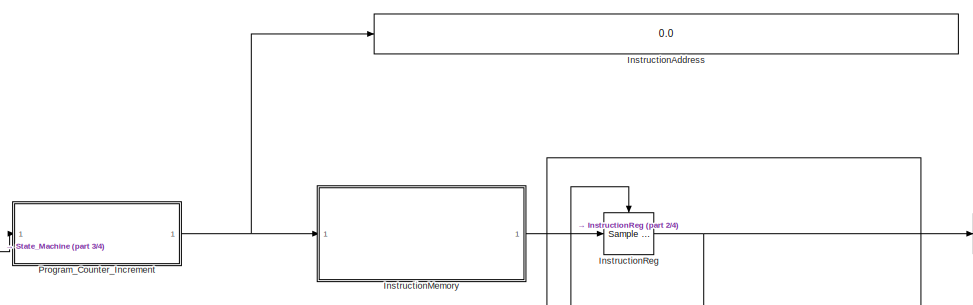
[diagram: root canvas - part 1/4, top center region]
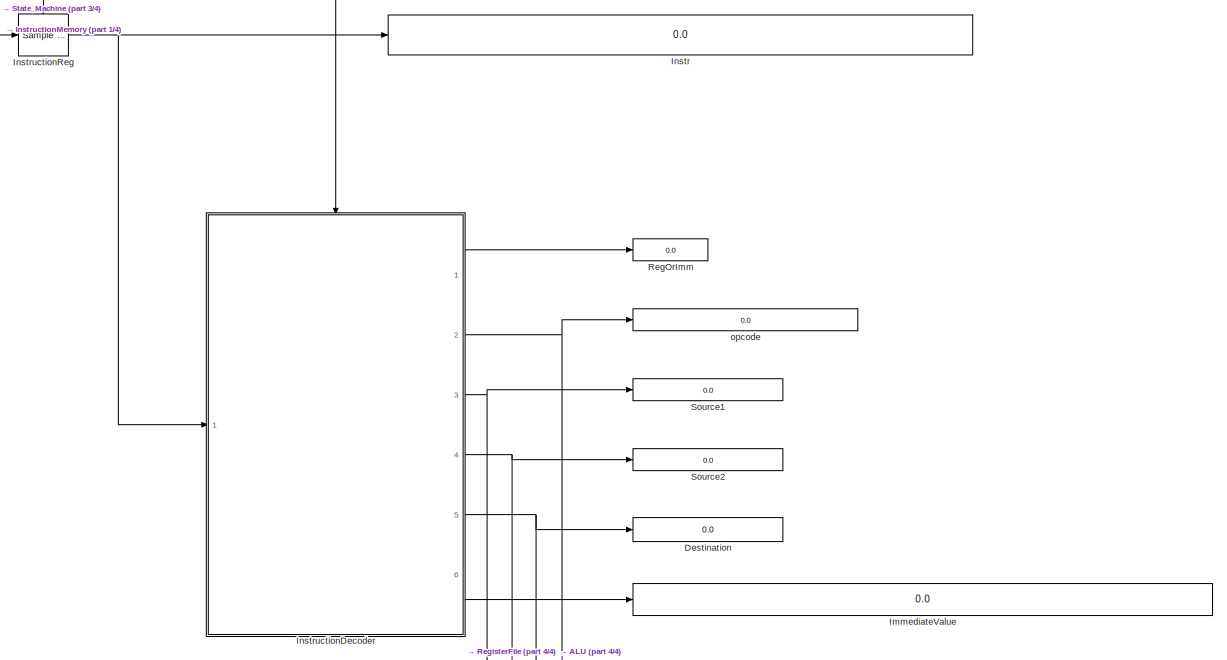
[diagram: root canvas - part 2/4, middle right region]
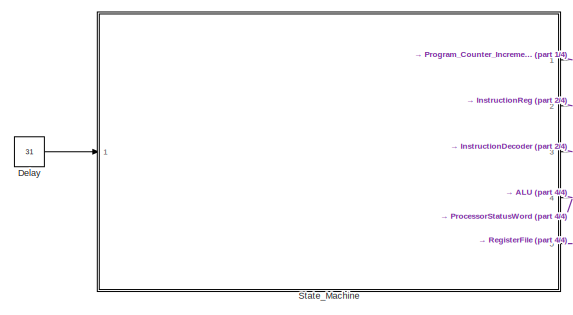
[diagram: root canvas - part 3/4, middle left region]
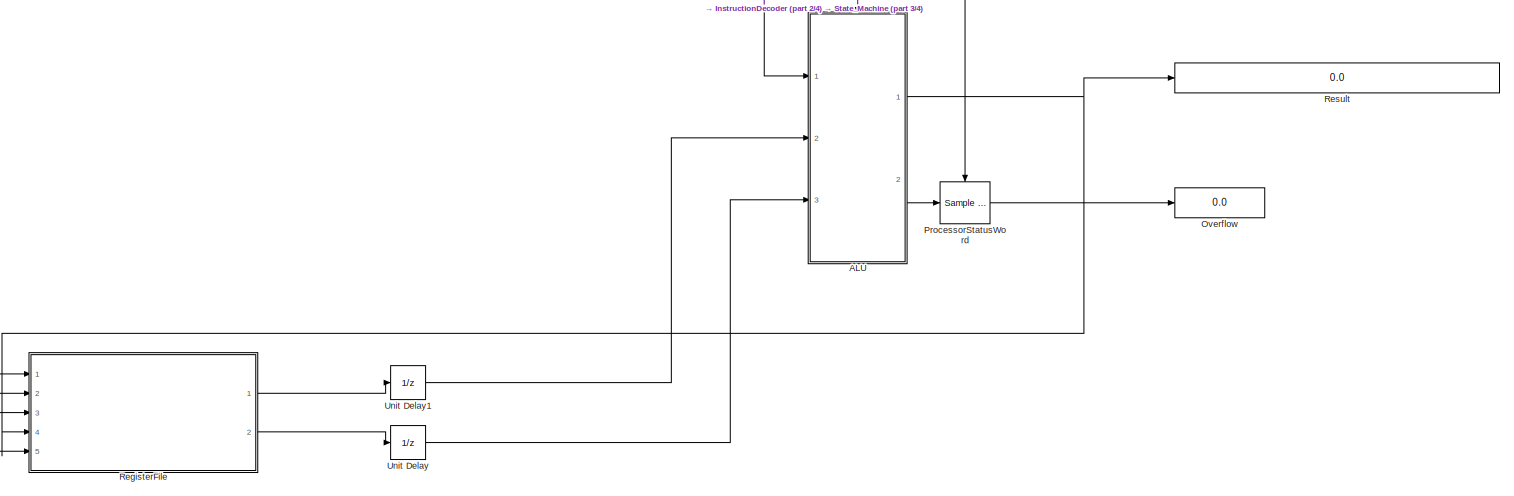
[diagram: root canvas - part 4/4, bottom right region]
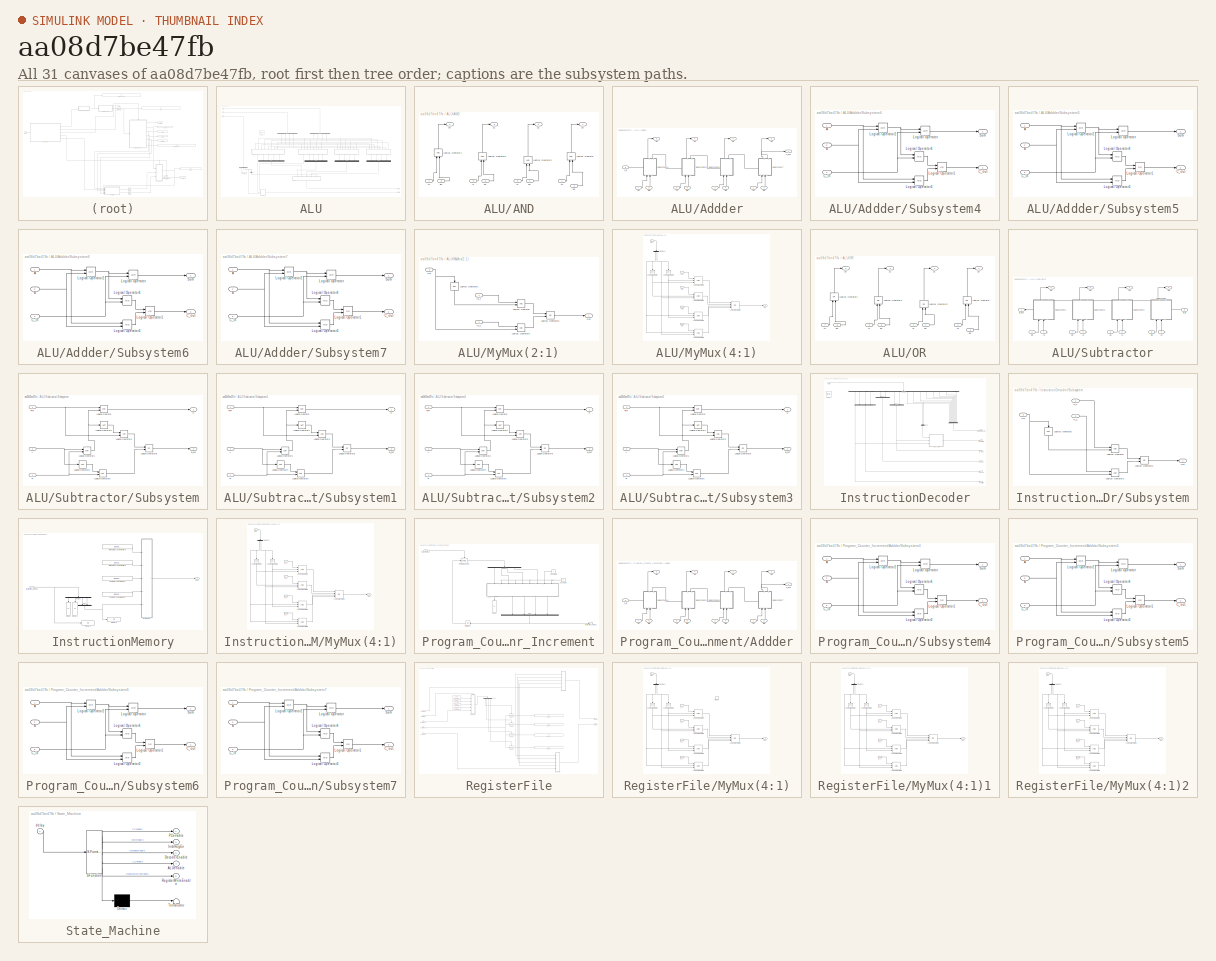
[diagram: thumbnail index - all 31 canvases of the model, root first then tree order]
MODEL slx_aa08d7be47fb
KIND model
CONFIG AbsTol = auto
CONFIG EnableMultiTasking = off
CONFIG FixedStep = auto
CONFIG MaxStep = auto
CONFIG MinStep = auto
CONFIG RelTol = 1e-3
CONFIG SampleTimeConstraint = Unconstrained
CONFIG SolverName = VariableStepAuto
CONFIG StartTime = 0.0
CONFIG StopTime = 10
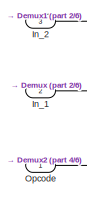
[diagram: ALU - part 1/6, top left region]
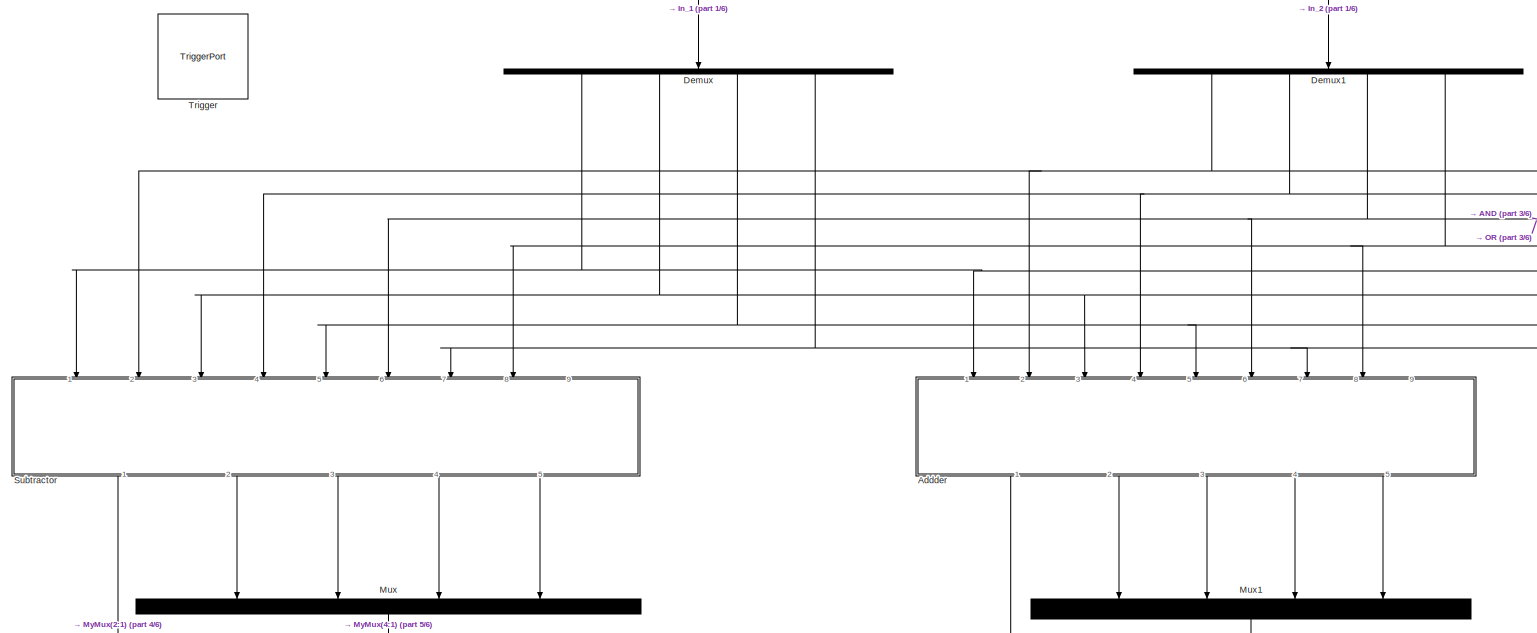
[diagram: ALU - part 2/6, central region]
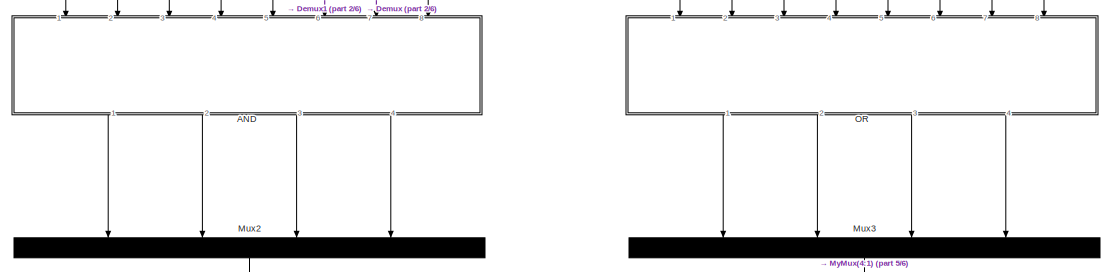
[diagram: ALU - part 3/6, middle right region]
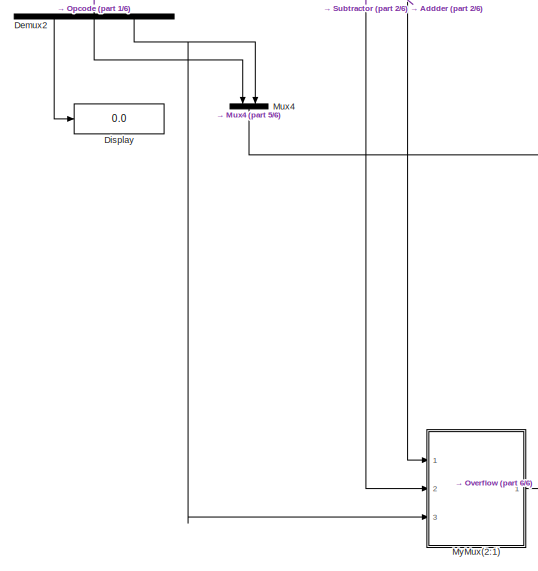
[diagram: ALU - part 4/6, bottom left region]
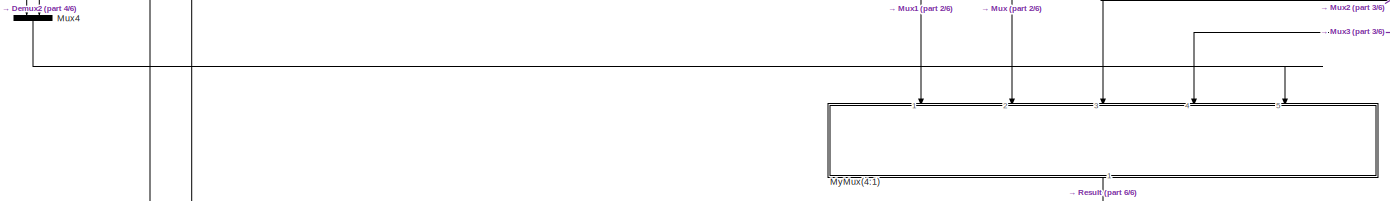
[diagram: ALU - part 5/6, bottom center region]
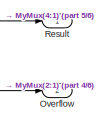
[diagram: ALU - part 6/6, bottom right region]
BLOCK [SubSystem] ALU
  Ports = [3, 2, 0, 1]
  RequestExecContextInheritance = off
BLOCK [SubSystem] ALU/AND
  NameLocation = left
  Ports = [8, 4]
  RequestExecContextInheritance = off
BLOCK [Inport] ALU/AND/A0
  Port = 7
BLOCK [Inport] ALU/AND/A1
  Port = 5
BLOCK [Inport] ALU/AND/A2
  Port = 3
BLOCK [Inport] ALU/AND/A3
BLOCK [Inport] ALU/AND/B0
  Port = 8
BLOCK [Inport] ALU/AND/B1
  Port = 6
BLOCK [Inport] ALU/AND/B2
  Port = 4
BLOCK [Inport] ALU/AND/B3
  Port = 2
BLOCK [Logic] ALU/AND/Logical Operator
  AllPortsSameDT = off
  NameLocation = right
  OutDataTypeStr = boolean
  Ports = [2, 1]
BLOCK [Logic] ALU/AND/Logical Operator1
  AllPortsSameDT = off
  NameLocation = right
  OutDataTypeStr = boolean
  Ports = [2, 1]
BLOCK [Logic] ALU/AND/Logical Operator2
  AllPortsSameDT = off
  NameLocation = right
  OutDataTypeStr = boolean
  Ports = [2, 1]
BLOCK [Logic] ALU/AND/Logical Operator3
  AllPortsSameDT = off
  NameLocation = right
  OutDataTypeStr = boolean
  Ports = [2, 1]
BLOCK [Outport] ALU/AND/S0
  Port = 4
BLOCK [Outport] ALU/AND/S1
  Port = 3
BLOCK [Outport] ALU/AND/S2
  Port = 2
BLOCK [Outport] ALU/AND/S3
BLOCK [SubSystem] ALU/Addder
  NameLocation = left
  Ports = [9, 5]
  RequestExecContextInheritance = off
BLOCK [Inport] ALU/Addder/A0
  Port = 7
BLOCK [Inport] ALU/Addder/A1
  Port = 5
BLOCK [Inport] ALU/Addder/A2
  Port = 3
BLOCK [Inport] ALU/Addder/A3
BLOCK [Inport] ALU/Addder/B0
  Port = 8
BLOCK [Inport] ALU/Addder/B1
  Port = 6
BLOCK [Inport] ALU/Addder/B2
  Port = 4
BLOCK [Inport] ALU/Addder/B3
  Port = 2
BLOCK [Inport] ALU/Addder/C_in
  Port = 9
BLOCK [Outport] ALU/Addder/C_out
BLOCK [Outport] ALU/Addder/S0
  Port = 5
BLOCK [Outport] ALU/Addder/S1
  Port = 4
BLOCK [Outport] ALU/Addder/S2
  Port = 3
BLOCK [Outport] ALU/Addder/S3
  Port = 2
BLOCK [SubSystem] ALU/Addder/Subsystem4
  NameLocation = right
  PortSchema = {"entries":[{"content":{"sides":[{"content":{"connectorIds":["In1","In2"]},"type":"ConnectorPlacement.EquallySpacedRectSide","uuid":"38d1d783-1e84-469f-b88f-34400794f458"},{"content":{"connectorIds":["Out1","Out2"],"side":"RIGHT"},"type":"ConnectorPlacement.EquallySpacedRectSide","uuid":"9549b396-3b16-432f-9c12-dae7a5b8dc11"},{"content":{"connectorIds":["In3"],"side":"TOP"},"type":"ConnectorPlacem...<+258ch>  <repeated x8 — deduplicated; at blocks: Subsystem4, Subsystem5, Subsystem6, Subsystem7>
  Ports = [3, 2]
  RequestExecContextInheritance = off
BLOCK [Inport] ALU/Addder/Subsystem4/A
BLOCK [Inport] ALU/Addder/Subsystem4/B
  Port = 2
BLOCK [Inport] ALU/Addder/Subsystem4/C_in
  Port = 3
BLOCK [Outport] ALU/Addder/Subsystem4/C_out
  Port = 2
BLOCK [Logic] ALU/Addder/Subsystem4/Logical Operator
  AllPortsSameDT = off
  Operator = XOR
  OutDataTypeStr = boolean
  Ports = [2, 1]
BLOCK [Logic] ALU/Addder/Subsystem4/Logical Operator1
  AllPortsSameDT = off
  Operator = OR
  OutDataTypeStr = boolean
  Ports = [2, 1]
BLOCK [Logic] ALU/Addder/Subsystem4/Logical Operator2
  AllPortsSameDT = off
  Operator = XOR
  OutDataTypeStr = boolean
  Ports = [2, 1]
BLOCK [Logic] ALU/Addder/Subsystem4/Logical Operator3
  AllPortsSameDT = off
  OutDataTypeStr = boolean
  Ports = [2, 1]
BLOCK [Logic] ALU/Addder/Subsystem4/Logical Operator4
  AllPortsSameDT = off
  OutDataTypeStr = boolean
  Ports = [2, 1]
BLOCK [Outport] ALU/Addder/Subsystem4/Sum
BLOCK [SubSystem] ALU/Addder/Subsystem5
  NameLocation = right
  Ports = [3, 2]
  RequestExecContextInheritance = off
BLOCK [Inport] ALU/Addder/Subsystem5/A
BLOCK [Inport] ALU/Addder/Subsystem5/B
  Port = 2
BLOCK [Inport] ALU/Addder/Subsystem5/C_in
  Port = 3
BLOCK [Outport] ALU/Addder/Subsystem5/C_out
  Port = 2
BLOCK [Logic] ALU/Addder/Subsystem5/Logical Operator
  AllPortsSameDT = off
  Operator = XOR
  OutDataTypeStr = boolean
  Ports = [2, 1]
BLOCK [Logic] ALU/Addder/Subsystem5/Logical Operator1
  AllPortsSameDT = off
  Operator = OR
  OutDataTypeStr = boolean
  Ports = [2, 1]
BLOCK [Logic] ALU/Addder/Subsystem5/Logical Operator2
  AllPortsSameDT = off
  Operator = XOR
  OutDataTypeStr = boolean
  Ports = [2, 1]
BLOCK [Logic] ALU/Addder/Subsystem5/Logical Operator3
  AllPortsSameDT = off
  OutDataTypeStr = boolean
  Ports = [2, 1]
BLOCK [Logic] ALU/Addder/Subsystem5/Logical Operator4
  AllPortsSameDT = off
  OutDataTypeStr = boolean
  Ports = [2, 1]
BLOCK [Outport] ALU/Addder/Subsystem5/Sum
BLOCK [SubSystem] ALU/Addder/Subsystem6
  NameLocation = right
  Ports = [3, 2]
  RequestExecContextInheritance = off
BLOCK [Inport] ALU/Addder/Subsystem6/A
BLOCK [Inport] ALU/Addder/Subsystem6/B
  Port = 2
BLOCK [Inport] ALU/Addder/Subsystem6/C_in
  Port = 3
BLOCK [Outport] ALU/Addder/Subsystem6/C_out
  Port = 2
BLOCK [Logic] ALU/Addder/Subsystem6/Logical Operator
  AllPortsSameDT = off
  Operator = XOR
  OutDataTypeStr = boolean
  Ports = [2, 1]
BLOCK [Logic] ALU/Addder/Subsystem6/Logical Operator1
  AllPortsSameDT = off
  Operator = OR
  OutDataTypeStr = boolean
  Ports = [2, 1]
BLOCK [Logic] ALU/Addder/Subsystem6/Logical Operator2
  AllPortsSameDT = off
  Operator = XOR
  OutDataTypeStr = boolean
  Ports = [2, 1]
BLOCK [Logic] ALU/Addder/Subsystem6/Logical Operator3
  AllPortsSameDT = off
  OutDataTypeStr = boolean
  Ports = [2, 1]
BLOCK [Logic] ALU/Addder/Subsystem6/Logical Operator4
  AllPortsSameDT = off
  OutDataTypeStr = boolean
  Ports = [2, 1]
BLOCK [Outport] ALU/Addder/Subsystem6/Sum
BLOCK [SubSystem] ALU/Addder/Subsystem7
  NameLocation = right
  Ports = [3, 2]
  RequestExecContextInheritance = off
BLOCK [Inport] ALU/Addder/Subsystem7/A
BLOCK [Inport] ALU/Addder/Subsystem7/B
  Port = 2
BLOCK [Inport] ALU/Addder/Subsystem7/C_in
  Port = 3
BLOCK [Outport] ALU/Addder/Subsystem7/C_out
  Port = 2
BLOCK [Logic] ALU/Addder/Subsystem7/Logical Operator
  AllPortsSameDT = off
  Operator = XOR
  OutDataTypeStr = boolean
  Ports = [2, 1]
BLOCK [Logic] ALU/Addder/Subsystem7/Logical Operator1
  AllPortsSameDT = off
  Operator = OR
  OutDataTypeStr = boolean
  Ports = [2, 1]
BLOCK [Logic] ALU/Addder/Subsystem7/Logical Operator2
  AllPortsSameDT = off
  Operator = XOR
  OutDataTypeStr = boolean
  Ports = [2, 1]
BLOCK [Logic] ALU/Addder/Subsystem7/Logical Operator3
  AllPortsSameDT = off
  OutDataTypeStr = boolean
  Ports = [2, 1]
BLOCK [Logic] ALU/Addder/Subsystem7/Logical Operator4
  AllPortsSameDT = off
  OutDataTypeStr = boolean
  Ports = [2, 1]
BLOCK [Outport] ALU/Addder/Subsystem7/Sum
BLOCK [Demux] ALU/Demux
  NameLocation = left
  Ports = [1, 4]
BLOCK [Demux] ALU/Demux1
  NameLocation = left
  Ports = [1, 4]
BLOCK [Demux] ALU/Demux2
  NameLocation = left
  Outputs = 3
  Ports = [1, 3]
BLOCK [Display] ALU/Display
  Decimation = 1
  Ports = [1]
BLOCK [Inport] ALU/In_1
  Port = 2
BLOCK [Inport] ALU/In_2
  Port = 3
BLOCK [Mux] ALU/Mux
  DisplayOption = bar
  NameLocation = left
  Ports = [4, 1]
BLOCK [Mux] ALU/Mux1
  DisplayOption = bar
  NameLocation = left
  Ports = [4, 1]
BLOCK [Mux] ALU/Mux2
  DisplayOption = bar
  NameLocation = left
  Ports = [4, 1]
BLOCK [Mux] ALU/Mux3
  DisplayOption = bar
  NameLocation = left
  Ports = [4, 1]
BLOCK [Mux] ALU/Mux4
  DisplayOption = bar
  Inputs = 2
  NameLocation = left
  Ports = [2, 1]
BLOCK [SubSystem] ALU/MyMux(2:1)
  Ports = [3, 1]
  RequestExecContextInheritance = off
BLOCK [Inport] ALU/MyMux(2:1)/In_1
BLOCK [Inport] ALU/MyMux(2:1)/In_2
  Port = 2
BLOCK [Logic] ALU/MyMux(2:1)/Logical Operator
  AllPortsSameDT = off
  OutDataTypeStr = boolean
  Ports = [2, 1]
BLOCK [Logic] ALU/MyMux(2:1)/Logical Operator1
  AllPortsSameDT = off
  NameLocation = left
  Operator = NOT
  OutDataTypeStr = boolean
  Ports = [1, 1]
BLOCK [Logic] ALU/MyMux(2:1)/Logical Operator2
  AllPortsSameDT = off
  OutDataTypeStr = boolean
  Ports = [2, 1]
BLOCK [Logic] ALU/MyMux(2:1)/Logical Operator3
  AllPortsSameDT = off
  Operator = OR
  OutDataTypeStr = boolean
  Ports = [2, 1]
BLOCK [Outport] ALU/MyMux(2:1)/Out
BLOCK [Inport] ALU/MyMux(2:1)/Sel
  Port = 3
BLOCK [SubSystem] ALU/MyMux(4:1)
  NameLocation = left
  Ports = [5, 1]
  RequestExecContextInheritance = off
BLOCK [Inport] ALU/MyMux(4:1)/AND
  Port = 3
BLOCK [Demux] ALU/MyMux(4:1)/Demux2
  NameLocation = left
  Outputs = 2
  Ports = [1, 2]
BLOCK [Inport] ALU/MyMux(4:1)/Diff
  Port = 2
BLOCK [Logic] ALU/MyMux(4:1)/Logical Operator
  AllPortsSameDT = off
  NameLocation = left
  Operator = NOT
  OutDataTypeStr = boolean
  Ports = [1, 1]
BLOCK [Logic] ALU/MyMux(4:1)/Logical Operator1
  AllPortsSameDT = off
  NameLocation = left
  Operator = NOT
  OutDataTypeStr = boolean
  Ports = [1, 1]
BLOCK [Logic] ALU/MyMux(4:1)/Logical Operator2
  AllPortsSameDT = off
  Inputs = 3
  OutDataTypeStr = boolean
  Ports = [3, 1]
BLOCK [Logic] ALU/MyMux(4:1)/Logical Operator3
  AllPortsSameDT = off
  Inputs = 3
  OutDataTypeStr = boolean
  Ports = [3, 1]
BLOCK [Logic] ALU/MyMux(4:1)/Logical Operator4
  AllPortsSameDT = off
  Inputs = 3
  OutDataTypeStr = boolean
  Ports = [3, 1]
BLOCK [Logic] ALU/MyMux(4:1)/Logical Operator5
  AllPortsSameDT = off
  Inputs = 3
  OutDataTypeStr = boolean
  Ports = [3, 1]
BLOCK [Logic] ALU/MyMux(4:1)/Logical Operator6
  AllPortsSameDT = off
  Inputs = 4
  Operator = OR
  OutDataTypeStr = boolean
  Ports = [4, 1]
BLOCK [Inport] ALU/MyMux(4:1)/OR
  Port = 4
BLOCK [Outport] ALU/MyMux(4:1)/Out
BLOCK [Inport] ALU/MyMux(4:1)/Sel
  Port = 5
BLOCK [Inport] ALU/MyMux(4:1)/Sum
BLOCK [SubSystem] ALU/OR
  NameLocation = left
  Ports = [8, 4]
  RequestExecContextInheritance = off
BLOCK [Inport] ALU/OR/A0
  Port = 7
BLOCK [Inport] ALU/OR/A1
  Port = 5
BLOCK [Inport] ALU/OR/A2
  Port = 3
BLOCK [Inport] ALU/OR/A3
BLOCK [Inport] ALU/OR/B0
  Port = 8
BLOCK [Inport] ALU/OR/B1
  Port = 6
BLOCK [Inport] ALU/OR/B2
  Port = 4
BLOCK [Inport] ALU/OR/B3
  Port = 2
BLOCK [Logic] ALU/OR/Logical Operator
  AllPortsSameDT = off
  NameLocation = right
  Operator = OR
  OutDataTypeStr = boolean
  Ports = [2, 1]
BLOCK [Logic] ALU/OR/Logical Operator1
  AllPortsSameDT = off
  NameLocation = right
  Operator = OR
  OutDataTypeStr = boolean
  Ports = [2, 1]
BLOCK [Logic] ALU/OR/Logical Operator2
  AllPortsSameDT = off
  NameLocation = right
  Operator = OR
  OutDataTypeStr = boolean
  Ports = [2, 1]
BLOCK [Logic] ALU/OR/Logical Operator3
  AllPortsSameDT = off
  NameLocation = right
  Operator = OR
  OutDataTypeStr = boolean
  Ports = [2, 1]
BLOCK [Outport] ALU/OR/S0
  Port = 4
BLOCK [Outport] ALU/OR/S1
  Port = 3
BLOCK [Outport] ALU/OR/S2
  Port = 2
BLOCK [Outport] ALU/OR/S3
BLOCK [Inport] ALU/Opcode
BLOCK [Outport] ALU/Overflow
  Port = 2
BLOCK [Outport] ALU/Result
BLOCK [SubSystem] ALU/Subtractor
  NameLocation = left
  Ports = [9, 5]
  RequestExecContextInheritance = off
BLOCK [Inport] ALU/Subtractor/A0
  Port = 7
BLOCK [Inport] ALU/Subtractor/A1
  Port = 5
BLOCK [Inport] ALU/Subtractor/A2
  Port = 3
BLOCK [Inport] ALU/Subtractor/A3
BLOCK [Inport] ALU/Subtractor/B0
  Port = 8
BLOCK [Inport] ALU/Subtractor/B1
  Port = 6
BLOCK [Inport] ALU/Subtractor/B2
  Port = 4
BLOCK [Inport] ALU/Subtractor/B3
  Port = 2
BLOCK [Inport] ALU/Subtractor/B_in
  Port = 9
BLOCK [Outport] ALU/Subtractor/B_out
BLOCK [Outport] ALU/Subtractor/D0
  Port = 5
BLOCK [Outport] ALU/Subtractor/D1
  Port = 4
BLOCK [Outport] ALU/Subtractor/D2
  Port = 3
BLOCK [Outport] ALU/Subtractor/D3
  Port = 2
BLOCK [SubSystem] ALU/Subtractor/Subsystem
  NameLocation = right
  PortSchema = {"entries":[{"content":{"sides":[{"content":{"connectorIds":["In1","In2"]},"type":"ConnectorPlacement.EquallySpacedRectSide","uuid":"38d1d783-1e84-469f-b88f-34400794f458"},{"content":{"connectorIds":["Out1"],"side":"RIGHT"},"type":"ConnectorPlacement.EquallySpacedRectSide","uuid":"9549b396-3b16-432f-9c12-dae7a5b8dc11"},{"content":{"connectorIds":["Out2"],"side":"TOP"},"type":"ConnectorPlacement.Eq...<+401ch>  <repeated x4 — deduplicated; at blocks: Subsystem, Subsystem1, Subsystem2, Subsystem3>
  Ports = [3, 2]
  RequestExecContextInheritance = off
BLOCK [Inport] ALU/Subtractor/Subsystem/A
  Port = 2
BLOCK [Inport] ALU/Subtractor/Subsystem/B
BLOCK [Inport] ALU/Subtractor/Subsystem/B_in
  Port = 3
BLOCK [Outport] ALU/Subtractor/Subsystem/B_out
  Port = 2
BLOCK [Outport] ALU/Subtractor/Subsystem/D
BLOCK [Logic] ALU/Subtractor/Subsystem/Logical Operator
  AllPortsSameDT = off
  Operator = XOR
  OutDataTypeStr = boolean
  Ports = [2, 1]
BLOCK [Logic] ALU/Subtractor/Subsystem/Logical Operator1
  AllPortsSameDT = off
  Operator = XOR
  OutDataTypeStr = boolean
  Ports = [2, 1]
BLOCK [Logic] ALU/Subtractor/Subsystem/Logical Operator2
  AllPortsSameDT = off
  Operator = NOT
  OutDataTypeStr = boolean
  Ports = [1, 1]
BLOCK [Logic] ALU/Subtractor/Subsystem/Logical Operator3
  AllPortsSameDT = off
  OutDataTypeStr = boolean
  Ports = [2, 1]
BLOCK [Logic] ALU/Subtractor/Subsystem/Logical Operator4
  AllPortsSameDT = off
  Operator = NOT
  OutDataTypeStr = boolean
  Ports = [1, 1]
BLOCK [Logic] ALU/Subtractor/Subsystem/Logical Operator5
  AllPortsSameDT = off
  OutDataTypeStr = boolean
  Ports = [2, 1]
BLOCK [Logic] ALU/Subtractor/Subsystem/Logical Operator8
  AllPortsSameDT = off
  Operator = OR
  OutDataTypeStr = boolean
  Ports = [2, 1]
BLOCK [SubSystem] ALU/Subtractor/Subsystem1
  NameLocation = right
  Ports = [3, 2]
  RequestExecContextInheritance = off
BLOCK [Inport] ALU/Subtractor/Subsystem1/A
  Port = 2
BLOCK [Inport] ALU/Subtractor/Subsystem1/B
BLOCK [Inport] ALU/Subtractor/Subsystem1/B_in
  Port = 3
BLOCK [Outport] ALU/Subtractor/Subsystem1/B_out
  Port = 2
BLOCK [Outport] ALU/Subtractor/Subsystem1/D
BLOCK [Logic] ALU/Subtractor/Subsystem1/Logical Operator
  AllPortsSameDT = off
  Operator = XOR
  OutDataTypeStr = boolean
  Ports = [2, 1]
BLOCK [Logic] ALU/Subtractor/Subsystem1/Logical Operator1
  AllPortsSameDT = off
  Operator = XOR
  OutDataTypeStr = boolean
  Ports = [2, 1]
BLOCK [Logic] ALU/Subtractor/Subsystem1/Logical Operator2
  AllPortsSameDT = off
  Operator = NOT
  OutDataTypeStr = boolean
  Ports = [1, 1]
BLOCK [Logic] ALU/Subtractor/Subsystem1/Logical Operator3
  AllPortsSameDT = off
  OutDataTypeStr = boolean
  Ports = [2, 1]
BLOCK [Logic] ALU/Subtractor/Subsystem1/Logical Operator4
  AllPortsSameDT = off
  Operator = NOT
  OutDataTypeStr = boolean
  Ports = [1, 1]
BLOCK [Logic] ALU/Subtractor/Subsystem1/Logical Operator5
  AllPortsSameDT = off
  OutDataTypeStr = boolean
  Ports = [2, 1]
BLOCK [Logic] ALU/Subtractor/Subsystem1/Logical Operator8
  AllPortsSameDT = off
  Operator = OR
  OutDataTypeStr = boolean
  Ports = [2, 1]
BLOCK [SubSystem] ALU/Subtractor/Subsystem2
  NameLocation = right
  Ports = [3, 2]
  RequestExecContextInheritance = off
BLOCK [Inport] ALU/Subtractor/Subsystem2/A
  Port = 2
BLOCK [Inport] ALU/Subtractor/Subsystem2/B
BLOCK [Inport] ALU/Subtractor/Subsystem2/B_in
  Port = 3
BLOCK [Outport] ALU/Subtractor/Subsystem2/B_out
  Port = 2
BLOCK [Outport] ALU/Subtractor/Subsystem2/D
BLOCK [Logic] ALU/Subtractor/Subsystem2/Logical Operator
  AllPortsSameDT = off
  Operator = XOR
  OutDataTypeStr = boolean
  Ports = [2, 1]
BLOCK [Logic] ALU/Subtractor/Subsystem2/Logical Operator1
  AllPortsSameDT = off
  Operator = XOR
  OutDataTypeStr = boolean
  Ports = [2, 1]
BLOCK [Logic] ALU/Subtractor/Subsystem2/Logical Operator2
  AllPortsSameDT = off
  Operator = NOT
  OutDataTypeStr = boolean
  Ports = [1, 1]
BLOCK [Logic] ALU/Subtractor/Subsystem2/Logical Operator3
  AllPortsSameDT = off
  OutDataTypeStr = boolean
  Ports = [2, 1]
BLOCK [Logic] ALU/Subtractor/Subsystem2/Logical Operator4
  AllPortsSameDT = off
  Operator = NOT
  OutDataTypeStr = boolean
  Ports = [1, 1]
BLOCK [Logic] ALU/Subtractor/Subsystem2/Logical Operator5
  AllPortsSameDT = off
  OutDataTypeStr = boolean
  Ports = [2, 1]
BLOCK [Logic] ALU/Subtractor/Subsystem2/Logical Operator8
  AllPortsSameDT = off
  Operator = OR
  OutDataTypeStr = boolean
  Ports = [2, 1]
BLOCK [SubSystem] ALU/Subtractor/Subsystem3
  NameLocation = right
  Ports = [3, 2]
  RequestExecContextInheritance = off
BLOCK [Inport] ALU/Subtractor/Subsystem3/A
  Port = 2
BLOCK [Inport] ALU/Subtractor/Subsystem3/B
BLOCK [Inport] ALU/Subtractor/Subsystem3/B_in
  Port = 3
BLOCK [Outport] ALU/Subtractor/Subsystem3/B_out
  Port = 2
BLOCK [Outport] ALU/Subtractor/Subsystem3/D
BLOCK [Logic] ALU/Subtractor/Subsystem3/Logical Operator
  AllPortsSameDT = off
  Operator = XOR
  OutDataTypeStr = boolean
  Ports = [2, 1]
BLOCK [Logic] ALU/Subtractor/Subsystem3/Logical Operator1
  AllPortsSameDT = off
  Operator = XOR
  OutDataTypeStr = boolean
  Ports = [2, 1]
BLOCK [Logic] ALU/Subtractor/Subsystem3/Logical Operator2
  AllPortsSameDT = off
  Operator = NOT
  OutDataTypeStr = boolean
  Ports = [1, 1]
BLOCK [Logic] ALU/Subtractor/Subsystem3/Logical Operator3
  AllPortsSameDT = off
  OutDataTypeStr = boolean
  Ports = [2, 1]
BLOCK [Logic] ALU/Subtractor/Subsystem3/Logical Operator4
  AllPortsSameDT = off
  Operator = NOT
  OutDataTypeStr = boolean
  Ports = [1, 1]
BLOCK [Logic] ALU/Subtractor/Subsystem3/Logical Operator5
  AllPortsSameDT = off
  OutDataTypeStr = boolean
  Ports = [2, 1]
BLOCK [Logic] ALU/Subtractor/Subsystem3/Logical Operator8
  AllPortsSameDT = off
  Operator = OR
  OutDataTypeStr = boolean
  Ports = [2, 1]
BLOCK [TriggerPort] ALU/Trigger
  PortDimensions = 1
  Ports = []
  StatesWhenEnabling = held
  VariantControl = (inherit)
BLOCK [Constant] Delay
  Value = 31
BLOCK [Display] Destination
  Decimation = 1
  Ports = [1]
BLOCK [Display] ImmediateValue
  Decimation = 1
  Ports = [1]
BLOCK [Display] Instr
  Decimation = 1
  Ports = [1]
BLOCK [Display] InstructionAddress
  Decimation = 1
  Ports = [1]
BLOCK [SubSystem] InstructionDecoder
  Ports = [1, 6, 0, 1]
  RequestExecContextInheritance = off
BLOCK [Demux] InstructionDecoder/Demux
  NameLocation = left
  Outputs = 16
  Ports = [1, 16]
BLOCK [Outport] InstructionDecoder/Destination
  Port = 5
BLOCK [Outport] InstructionDecoder/ImmediateValue
  Port = 6
BLOCK [Inport] InstructionDecoder/InstrIn
BLOCK [Mux] InstructionDecoder/Mux
  DisplayOption = bar
  Inputs = 3
  NameLocation = left
  Ports = [3, 1]
BLOCK [Mux] InstructionDecoder/Mux1
  DisplayOption = bar
  Inputs = 2
  NameLocation = left
  Ports = [2, 1]
BLOCK [Mux] InstructionDecoder/Mux2
  DisplayOption = bar
  Inputs = 2
  NameLocation = left
  Ports = [2, 1]
BLOCK [Mux] InstructionDecoder/Mux3
  DisplayOption = bar
  Inputs = 8
  NameLocation = left
  Ports = [8, 1]
BLOCK [Mux] InstructionDecoder/Mux4
  DisplayOption = bar
  Inputs = 2
  NameLocation = left
  Ports = [2, 1]
BLOCK [Outport] InstructionDecoder/Opcode
  Port = 2
BLOCK [Outport] InstructionDecoder/RegOrImm
BLOCK [Outport] InstructionDecoder/Source1
  Port = 3
BLOCK [Outport] InstructionDecoder/Source2
  Port = 4
BLOCK [SubSystem] InstructionDecoder/Subsystem
  Ports = [3, 1]
  RequestExecContextInheritance = off
BLOCK [Inport] InstructionDecoder/Subsystem/In_1
BLOCK [Inport] InstructionDecoder/Subsystem/In_2
  Port = 2
BLOCK [Logic] InstructionDecoder/Subsystem/Logical Operator
  AllPortsSameDT = off
  OutDataTypeStr = boolean
  Ports = [2, 1]
BLOCK [Logic] InstructionDecoder/Subsystem/Logical Operator1
  AllPortsSameDT = off
  NameLocation = left
  Operator = NOT
  OutDataTypeStr = boolean
  Ports = [1, 1]
BLOCK [Logic] InstructionDecoder/Subsystem/Logical Operator2
  AllPortsSameDT = off
  OutDataTypeStr = boolean
  Ports = [2, 1]
BLOCK [Logic] InstructionDecoder/Subsystem/Logical Operator3
  AllPortsSameDT = off
  Operator = OR
  OutDataTypeStr = boolean
  Ports = [2, 1]
BLOCK [Outport] InstructionDecoder/Subsystem/Out
BLOCK [Inport] InstructionDecoder/Subsystem/Sel
  Port = 3
BLOCK [TriggerPort] InstructionDecoder/Trigger
  PortDimensions = 1
  Ports = []
  StatesWhenEnabling = held
  VariantControl = (inherit)
BLOCK [SubSystem] InstructionMemory
  Ports = [1, 1]
  RequestExecContextInheritance = off
BLOCK [Demux] InstructionMemory/Demux
  NameLocation = left
  Ports = [1, 4]
BLOCK [Display] InstructionMemory/Display
  Decimation = 1
  NameLocation = left
  Ports = [1]
BLOCK [Display] InstructionMemory/Display1
  Decimation = 1
  NameLocation = left
  Ports = [1]
BLOCK [Display] InstructionMemory/Display2
  Decimation = 1
  Ports = [1]
BLOCK [Display] InstructionMemory/Display3
  Decimation = 1
  Ports = [1]
BLOCK [Constant] InstructionMemory/ImmediateTypeInstruction1
  Value = [1 0 0 0 0 1 0 0 1 0 0 0 0 0 0 0]
BLOCK [Constant] InstructionMemory/ImmediateTypeInstruction2
  Value = [1 0 0 1 0 0 1 1 1 1 0 0 0 0 0 0]
BLOCK [Outport] InstructionMemory/Instr
BLOCK [Inport] InstructionMemory/InstructionAddress
BLOCK [Mux] InstructionMemory/Mux
  DisplayOption = bar
  Inputs = 2
  NameLocation = left
  Ports = [2, 1]
BLOCK [SubSystem] InstructionMemory/MyMux(4:1)
  Ports = [5, 1]
  RequestExecContextInheritance = off
BLOCK [Demux] InstructionMemory/MyMux(4:1)/Demux2
  NameLocation = left
  Outputs = 2
  Ports = [1, 2]
BLOCK [Inport] InstructionMemory/MyMux(4:1)/In_1
BLOCK [Inport] InstructionMemory/MyMux(4:1)/In_2
  Port = 2
BLOCK [Inport] InstructionMemory/MyMux(4:1)/In_3
  Port = 3
BLOCK [Inport] InstructionMemory/MyMux(4:1)/In_4
  Port = 4
BLOCK [Logic] InstructionMemory/MyMux(4:1)/Logical Operator
  AllPortsSameDT = off
  NameLocation = left
  Operator = NOT
  OutDataTypeStr = boolean
  Ports = [1, 1]
BLOCK [Logic] InstructionMemory/MyMux(4:1)/Logical Operator1
  AllPortsSameDT = off
  NameLocation = left
  Operator = NOT
  OutDataTypeStr = boolean
  Ports = [1, 1]
BLOCK [Logic] InstructionMemory/MyMux(4:1)/Logical Operator2
  AllPortsSameDT = off
  Inputs = 3
  OutDataTypeStr = boolean
  Ports = [3, 1]
BLOCK [Logic] InstructionMemory/MyMux(4:1)/Logical Operator3
  AllPortsSameDT = off
  Inputs = 3
  OutDataTypeStr = boolean
  Ports = [3, 1]
BLOCK [Logic] InstructionMemory/MyMux(4:1)/Logical Operator4
  AllPortsSameDT = off
  Inputs = 3
  OutDataTypeStr = boolean
  Ports = [3, 1]
BLOCK [Logic] InstructionMemory/MyMux(4:1)/Logical Operator5
  AllPortsSameDT = off
  Inputs = 3
  OutDataTypeStr = boolean
  Ports = [3, 1]
BLOCK [Logic] InstructionMemory/MyMux(4:1)/Logical Operator6
  AllPortsSameDT = off
  Inputs = 4
  Operator = OR
  OutDataTypeStr = boolean
  Ports = [4, 1]
BLOCK [Outport] InstructionMemory/MyMux(4:1)/Out
BLOCK [Inport] InstructionMemory/MyMux(4:1)/Sel
  Port = 5
BLOCK [Constant] InstructionMemory/RegisterTypeInstruction1
  Value = [0 0 0 0 0 1 1 0 0 1 0 0 0 0 0 0]
BLOCK [Constant] InstructionMemory/RegisterTypeInstruction2
  Value = [0 0 0 1 0 0 1 0 1 1 0 0 0 0 0 0]
BLOCK [Reference] InstructionReg  REF=dspsigops/Sample
and Hold
  Ports = [1, 1, 0, 1]
  SourceBlock = dspsigops/Sample\nand Hold
  SourceProductBaseCode = DS
  SourceType = Sample and Hold
BLOCK [Display] Overflow
  Decimation = 1
  Ports = [1]
BLOCK [Reference] ProcessorStatusWord  REF=dspsigops/Sample
and Hold
  Ports = [1, 1, 0, 1]
  SourceBlock = dspsigops/Sample\nand Hold
  SourceProductBaseCode = DS
  SourceType = Sample and Hold
BLOCK [SubSystem] Program_Counter_Increment
  Ports = [1, 1]
  RequestExecContextInheritance = off
BLOCK [SubSystem] Program_Counter_Increment/Addder
  NameLocation = left
  Ports = [9, 5]
  RequestExecContextInheritance = off
BLOCK [Inport] Program_Counter_Increment/Addder/A0
  Port = 7
BLOCK [Inport] Program_Counter_Increment/Addder/A1
  Port = 5
BLOCK [Inport] Program_Counter_Increment/Addder/A2
  Port = 3
BLOCK [Inport] Program_Counter_Increment/Addder/A3
BLOCK [Inport] Program_Counter_Increment/Addder/B0
  Port = 8
BLOCK [Inport] Program_Counter_Increment/Addder/B1
  Port = 6
BLOCK [Inport] Program_Counter_Increment/Addder/B2
  Port = 4
BLOCK [Inport] Program_Counter_Increment/Addder/B3
  Port = 2
BLOCK [Inport] Program_Counter_Increment/Addder/C_in
  Port = 9
BLOCK [Outport] Program_Counter_Increment/Addder/C_out
BLOCK [Outport] Program_Counter_Increment/Addder/S0
  Port = 5
BLOCK [Outport] Program_Counter_Increment/Addder/S1
  Port = 4
BLOCK [Outport] Program_Counter_Increment/Addder/S2
  Port = 3
BLOCK [Outport] Program_Counter_Increment/Addder/S3
  Port = 2
BLOCK [SubSystem] Program_Counter_Increment/Addder/Subsystem4
  NameLocation = right
  Ports = [3, 2]
  RequestExecContextInheritance = off
BLOCK [Inport] Program_Counter_Increment/Addder/Subsystem4/A
BLOCK [Inport] Program_Counter_Increment/Addder/Subsystem4/B
  Port = 2
BLOCK [Inport] Program_Counter_Increment/Addder/Subsystem4/C_in
  Port = 3
BLOCK [Outport] Program_Counter_Increment/Addder/Subsystem4/C_out
  Port = 2
BLOCK [Logic] Program_Counter_Increment/Addder/Subsystem4/Logical Operator
  AllPortsSameDT = off
  Operator = XOR
  OutDataTypeStr = boolean
  Ports = [2, 1]
BLOCK [Logic] Program_Counter_Increment/Addder/Subsystem4/Logical Operator1
  AllPortsSameDT = off
  Operator = OR
  OutDataTypeStr = boolean
  Ports = [2, 1]
BLOCK [Logic] Program_Counter_Increment/Addder/Subsystem4/Logical Operator2
  AllPortsSameDT = off
  Operator = XOR
  OutDataTypeStr = boolean
  Ports = [2, 1]
BLOCK [Logic] Program_Counter_Increment/Addder/Subsystem4/Logical Operator3
  AllPortsSameDT = off
  OutDataTypeStr = boolean
  Ports = [2, 1]
BLOCK [Logic] Program_Counter_Increment/Addder/Subsystem4/Logical Operator4
  AllPortsSameDT = off
  OutDataTypeStr = boolean
  Ports = [2, 1]
BLOCK [Outport] Program_Counter_Increment/Addder/Subsystem4/Sum
BLOCK [SubSystem] Program_Counter_Increment/Addder/Subsystem5
  NameLocation = right
  Ports = [3, 2]
  RequestExecContextInheritance = off
BLOCK [Inport] Program_Counter_Increment/Addder/Subsystem5/A
BLOCK [Inport] Program_Counter_Increment/Addder/Subsystem5/B
  Port = 2
BLOCK [Inport] Program_Counter_Increment/Addder/Subsystem5/C_in
  Port = 3
BLOCK [Outport] Program_Counter_Increment/Addder/Subsystem5/C_out
  Port = 2
BLOCK [Logic] Program_Counter_Increment/Addder/Subsystem5/Logical Operator
  AllPortsSameDT = off
  Operator = XOR
  OutDataTypeStr = boolean
  Ports = [2, 1]
BLOCK [Logic] Program_Counter_Increment/Addder/Subsystem5/Logical Operator1
  AllPortsSameDT = off
  Operator = OR
  OutDataTypeStr = boolean
  Ports = [2, 1]
BLOCK [Logic] Program_Counter_Increment/Addder/Subsystem5/Logical Operator2
  AllPortsSameDT = off
  Operator = XOR
  OutDataTypeStr = boolean
  Ports = [2, 1]
BLOCK [Logic] Program_Counter_Increment/Addder/Subsystem5/Logical Operator3
  AllPortsSameDT = off
  OutDataTypeStr = boolean
  Ports = [2, 1]
BLOCK [Logic] Program_Counter_Increment/Addder/Subsystem5/Logical Operator4
  AllPortsSameDT = off
  OutDataTypeStr = boolean
  Ports = [2, 1]
BLOCK [Outport] Program_Counter_Increment/Addder/Subsystem5/Sum
BLOCK [SubSystem] Program_Counter_Increment/Addder/Subsystem6
  NameLocation = right
  Ports = [3, 2]
  RequestExecContextInheritance = off
BLOCK [Inport] Program_Counter_Increment/Addder/Subsystem6/A
BLOCK [Inport] Program_Counter_Increment/Addder/Subsystem6/B
  Port = 2
BLOCK [Inport] Program_Counter_Increment/Addder/Subsystem6/C_in
  Port = 3
BLOCK [Outport] Program_Counter_Increment/Addder/Subsystem6/C_out
  Port = 2
BLOCK [Logic] Program_Counter_Increment/Addder/Subsystem6/Logical Operator
  AllPortsSameDT = off
  Operator = XOR
  OutDataTypeStr = boolean
  Ports = [2, 1]
BLOCK [Logic] Program_Counter_Increment/Addder/Subsystem6/Logical Operator1
  AllPortsSameDT = off
  Operator = OR
  OutDataTypeStr = boolean
  Ports = [2, 1]
BLOCK [Logic] Program_Counter_Increment/Addder/Subsystem6/Logical Operator2
  AllPortsSameDT = off
  Operator = XOR
  OutDataTypeStr = boolean
  Ports = [2, 1]
BLOCK [Logic] Program_Counter_Increment/Addder/Subsystem6/Logical Operator3
  AllPortsSameDT = off
  OutDataTypeStr = boolean
  Ports = [2, 1]
BLOCK [Logic] Program_Counter_Increment/Addder/Subsystem6/Logical Operator4
  AllPortsSameDT = off
  OutDataTypeStr = boolean
  Ports = [2, 1]
BLOCK [Outport] Program_Counter_Increment/Addder/Subsystem6/Sum
BLOCK [SubSystem] Program_Counter_Increment/Addder/Subsystem7
  NameLocation = right
  Ports = [3, 2]
  RequestExecContextInheritance = off
BLOCK [Inport] Program_Counter_Increment/Addder/Subsystem7/A
BLOCK [Inport] Program_Counter_Increment/Addder/Subsystem7/B
  Port = 2
BLOCK [Inport] Program_Counter_Increment/Addder/Subsystem7/C_in
  Port = 3
BLOCK [Outport] Program_Counter_Increment/Addder/Subsystem7/C_out
  Port = 2
BLOCK [Logic] Program_Counter_Increment/Addder/Subsystem7/Logical Operator
  AllPortsSameDT = off
  Operator = XOR
  OutDataTypeStr = boolean
  Ports = [2, 1]
BLOCK [Logic] Program_Counter_Increment/Addder/Subsystem7/Logical Operator1
  AllPortsSameDT = off
  Operator = OR
  OutDataTypeStr = boolean
  Ports = [2, 1]
BLOCK [Logic] Program_Counter_Increment/Addder/Subsystem7/Logical Operator2
  AllPortsSameDT = off
  Operator = XOR
  OutDataTypeStr = boolean
  Ports = [2, 1]
BLOCK [Logic] Program_Counter_Increment/Addder/Subsystem7/Logical Operator3
  AllPortsSameDT = off
  OutDataTypeStr = boolean
  Ports = [2, 1]
BLOCK [Logic] Program_Counter_Increment/Addder/Subsystem7/Logical Operator4
  AllPortsSameDT = off
  OutDataTypeStr = boolean
  Ports = [2, 1]
BLOCK [Outport] Program_Counter_Increment/Addder/Subsystem7/Sum
BLOCK [Constant] Program_Counter_Increment/Constant1
  NameLocation = top
BLOCK [Constant] Program_Counter_Increment/Constant2
  NameLocation = top
  Value = 0
BLOCK [Demux] Program_Counter_Increment/Demux
  NameLocation = left
  Ports = [1, 4]
BLOCK [Display] Program_Counter_Increment/Display
  Decimation = 1
  NameLocation = left
  Ports = [1]
BLOCK [Outport] Program_Counter_Increment/InstructionAddress
BLOCK [Mux] Program_Counter_Increment/Mux
  DisplayOption = bar
  NameLocation = left
  Ports = [4, 1]
BLOCK [Inport] Program_Counter_Increment/PCIncrement
BLOCK [Reference] Program_Counter_Increment/ProgramCounter  REF=dspsigops/Sample
and Hold
  Ports = [1, 1, 0, 1]
  SourceBlock = dspsigops/Sample\nand Hold
  SourceProductBaseCode = DS
  SourceType = Sample and Hold
BLOCK [UnitDelay] Program_Counter_Increment/Unit Delay
  HasFrameUpgradeWarning = on
  NameLocation = top
  SampleTime = -1
BLOCK [Display] RegOrImm
  Decimation = 1
  Ports = [1]
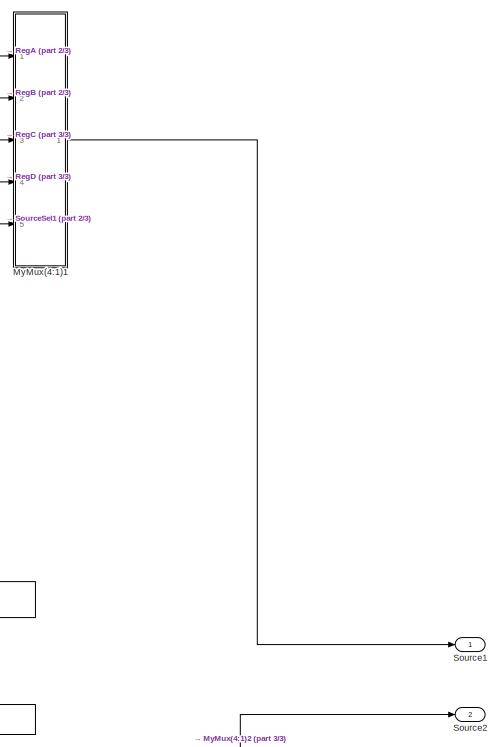
[diagram: RegisterFile - part 1/3, top right region]
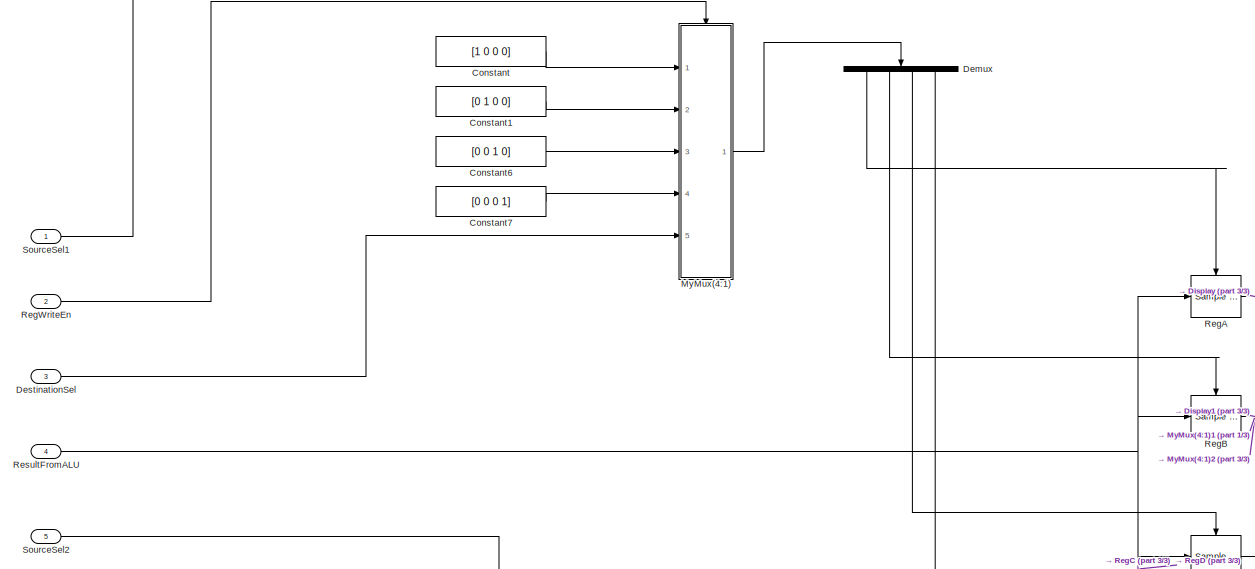
[diagram: RegisterFile - part 2/3, middle left region]
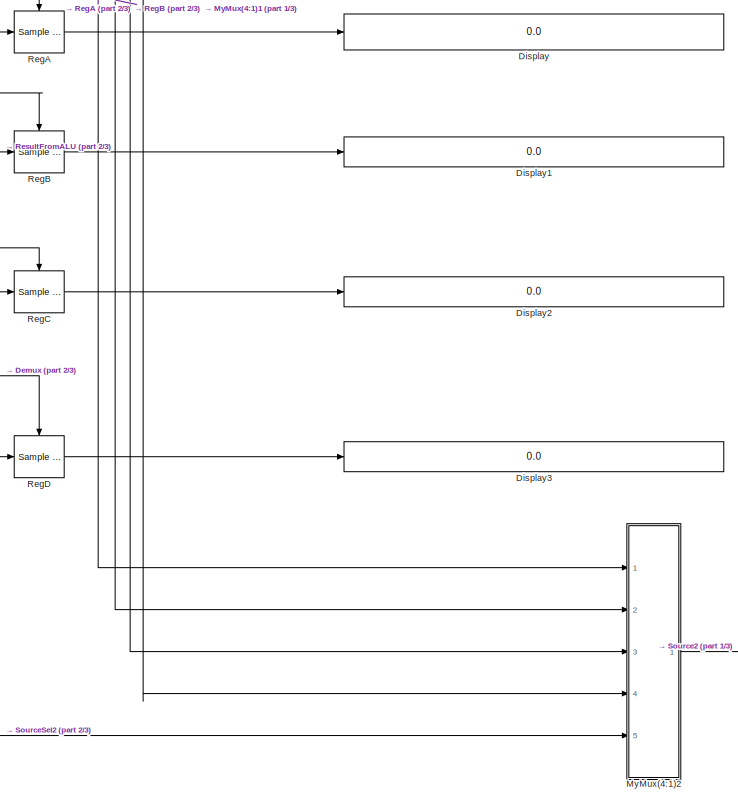
[diagram: RegisterFile - part 3/3, bottom center region]
BLOCK [SubSystem] RegisterFile
  Ports = [5, 2]
  RequestExecContextInheritance = off
BLOCK [Constant] RegisterFile/Constant
  Value = [1 0 0 0]
BLOCK [Constant] RegisterFile/Constant1
  Value = [0 1 0 0]
BLOCK [Constant] RegisterFile/Constant6
  Value = [0 0 1 0]
BLOCK [Constant] RegisterFile/Constant7
  Value = [0 0 0 1]
BLOCK [Demux] RegisterFile/Demux
  NameLocation = left
  Ports = [1, 4]
BLOCK [Inport] RegisterFile/DestinationSel
  Port = 3
BLOCK [Display] RegisterFile/Display
  Decimation = 1
  Ports = [1]
BLOCK [Display] RegisterFile/Display1
  Decimation = 1
  Ports = [1]
BLOCK [Display] RegisterFile/Display2
  Decimation = 1
  Ports = [1]
BLOCK [Display] RegisterFile/Display3
  Decimation = 1
  Ports = [1]
BLOCK [SubSystem] RegisterFile/MyMux(4:1)
  Ports = [5, 1, 0, 1]
  RequestExecContextInheritance = off
BLOCK [Demux] RegisterFile/MyMux(4:1)/Demux2
  NameLocation = left
  Outputs = 2
  Ports = [1, 2]
BLOCK [Inport] RegisterFile/MyMux(4:1)/In_1
BLOCK [Inport] RegisterFile/MyMux(4:1)/In_2
  Port = 2
BLOCK [Inport] RegisterFile/MyMux(4:1)/In_3
  Port = 3
BLOCK [Inport] RegisterFile/MyMux(4:1)/In_4
  Port = 4
BLOCK [Logic] RegisterFile/MyMux(4:1)/Logical Operator
  AllPortsSameDT = off
  NameLocation = left
  Operator = NOT
  OutDataTypeStr = boolean
  Ports = [1, 1]
BLOCK [Logic] RegisterFile/MyMux(4:1)/Logical Operator1
  AllPortsSameDT = off
  NameLocation = left
  Operator = NOT
  OutDataTypeStr = boolean
  Ports = [1, 1]
BLOCK [Logic] RegisterFile/MyMux(4:1)/Logical Operator2
  AllPortsSameDT = off
  Inputs = 3
  OutDataTypeStr = boolean
  Ports = [3, 1]
BLOCK [Logic] RegisterFile/MyMux(4:1)/Logical Operator3
  AllPortsSameDT = off
  Inputs = 3
  OutDataTypeStr = boolean
  Ports = [3, 1]
BLOCK [Logic] RegisterFile/MyMux(4:1)/Logical Operator4
  AllPortsSameDT = off
  Inputs = 3
  OutDataTypeStr = boolean
  Ports = [3, 1]
BLOCK [Logic] RegisterFile/MyMux(4:1)/Logical Operator5
  AllPortsSameDT = off
  Inputs = 3
  OutDataTypeStr = boolean
  Ports = [3, 1]
BLOCK [Logic] RegisterFile/MyMux(4:1)/Logical Operator6
  AllPortsSameDT = off
  Inputs = 4
  Operator = OR
  OutDataTypeStr = boolean
  Ports = [4, 1]
BLOCK [Outport] RegisterFile/MyMux(4:1)/Out
BLOCK [Inport] RegisterFile/MyMux(4:1)/Sel
  Port = 5
BLOCK [TriggerPort] RegisterFile/MyMux(4:1)/Trigger
  PortDimensions = 1
  Ports = []
  StatesWhenEnabling = held
  VariantControl = (inherit)
BLOCK [SubSystem] RegisterFile/MyMux(4:1)1
  Ports = [5, 1]
  RequestExecContextInheritance = off
BLOCK [Demux] RegisterFile/MyMux(4:1)1/Demux2
  NameLocation = left
  Outputs = 2
  Ports = [1, 2]
BLOCK [Inport] RegisterFile/MyMux(4:1)1/In_1
BLOCK [Inport] RegisterFile/MyMux(4:1)1/In_2
  Port = 2
BLOCK [Inport] RegisterFile/MyMux(4:1)1/In_3
  Port = 3
BLOCK [Inport] RegisterFile/MyMux(4:1)1/In_4
  Port = 4
BLOCK [Logic] RegisterFile/MyMux(4:1)1/Logical Operator
  AllPortsSameDT = off
  NameLocation = left
  Operator = NOT
  OutDataTypeStr = boolean
  Ports = [1, 1]
BLOCK [Logic] RegisterFile/MyMux(4:1)1/Logical Operator1
  AllPortsSameDT = off
  NameLocation = left
  Operator = NOT
  OutDataTypeStr = boolean
  Ports = [1, 1]
BLOCK [Logic] RegisterFile/MyMux(4:1)1/Logical Operator2
  AllPortsSameDT = off
  Inputs = 3
  OutDataTypeStr = boolean
  Ports = [3, 1]
BLOCK [Logic] RegisterFile/MyMux(4:1)1/Logical Operator3
  AllPortsSameDT = off
  Inputs = 3
  OutDataTypeStr = boolean
  Ports = [3, 1]
BLOCK [Logic] RegisterFile/MyMux(4:1)1/Logical Operator4
  AllPortsSameDT = off
  Inputs = 3
  OutDataTypeStr = boolean
  Ports = [3, 1]
BLOCK [Logic] RegisterFile/MyMux(4:1)1/Logical Operator5
  AllPortsSameDT = off
  Inputs = 3
  OutDataTypeStr = boolean
  Ports = [3, 1]
BLOCK [Logic] RegisterFile/MyMux(4:1)1/Logical Operator6
  AllPortsSameDT = off
  Inputs = 4
  Operator = OR
  OutDataTypeStr = boolean
  Ports = [4, 1]
BLOCK [Outport] RegisterFile/MyMux(4:1)1/Out
BLOCK [Inport] RegisterFile/MyMux(4:1)1/Sel
  Port = 5
BLOCK [SubSystem] RegisterFile/MyMux(4:1)2
  Ports = [5, 1]
  RequestExecContextInheritance = off
BLOCK [Demux] RegisterFile/MyMux(4:1)2/Demux2
  NameLocation = left
  Outputs = 2
  Ports = [1, 2]
BLOCK [Inport] RegisterFile/MyMux(4:1)2/In_1
BLOCK [Inport] RegisterFile/MyMux(4:1)2/In_2
  Port = 2
BLOCK [Inport] RegisterFile/MyMux(4:1)2/In_3
  Port = 3
BLOCK [Inport] RegisterFile/MyMux(4:1)2/In_4
  Port = 4
BLOCK [Logic] RegisterFile/MyMux(4:1)2/Logical Operator
  AllPortsSameDT = off
  NameLocation = left
  Operator = NOT
  OutDataTypeStr = boolean
  Ports = [1, 1]
BLOCK [Logic] RegisterFile/MyMux(4:1)2/Logical Operator1
  AllPortsSameDT = off
  NameLocation = left
  Operator = NOT
  OutDataTypeStr = boolean
  Ports = [1, 1]
BLOCK [Logic] RegisterFile/MyMux(4:1)2/Logical Operator2
  AllPortsSameDT = off
  Inputs = 3
  OutDataTypeStr = boolean
  Ports = [3, 1]
BLOCK [Logic] RegisterFile/MyMux(4:1)2/Logical Operator3
  AllPortsSameDT = off
  Inputs = 3
  OutDataTypeStr = boolean
  Ports = [3, 1]
BLOCK [Logic] RegisterFile/MyMux(4:1)2/Logical Operator4
  AllPortsSameDT = off
  Inputs = 3
  OutDataTypeStr = boolean
  Ports = [3, 1]
BLOCK [Logic] RegisterFile/MyMux(4:1)2/Logical Operator5
  AllPortsSameDT = off
  Inputs = 3
  OutDataTypeStr = boolean
  Ports = [3, 1]
BLOCK [Logic] RegisterFile/MyMux(4:1)2/Logical Operator6
  AllPortsSameDT = off
  Inputs = 4
  Operator = OR
  OutDataTypeStr = boolean
  Ports = [4, 1]
BLOCK [Outport] RegisterFile/MyMux(4:1)2/Out
BLOCK [Inport] RegisterFile/MyMux(4:1)2/Sel
  Port = 5
BLOCK [Reference] RegisterFile/RegA  REF=dspsigops/Sample
and Hold
  Ports = [1, 1, 0, 1]
  SourceBlock = dspsigops/Sample\nand Hold
  SourceProductBaseCode = DS
  SourceType = Sample and Hold
BLOCK [Reference] RegisterFile/RegB  REF=dspsigops/Sample
and Hold
  Ports = [1, 1, 0, 1]
  SourceBlock = dspsigops/Sample\nand Hold
  SourceProductBaseCode = DS
  SourceType = Sample and Hold
BLOCK [Reference] RegisterFile/RegC  REF=dspsigops/Sample
and Hold
  Ports = [1, 1, 0, 1]
  SourceBlock = dspsigops/Sample\nand Hold
  SourceProductBaseCode = DS
  SourceType = Sample and Hold
BLOCK [Reference] RegisterFile/RegD  REF=dspsigops/Sample
and Hold
  Ports = [1, 1, 0, 1]
  SourceBlock = dspsigops/Sample\nand Hold
  SourceProductBaseCode = DS
  SourceType = Sample and Hold
BLOCK [Inport] RegisterFile/RegWriteEn
  Port = 2
BLOCK [Inport] RegisterFile/ResultFromALU
  Port = 4
BLOCK [Outport] RegisterFile/Source1
BLOCK [Outport] RegisterFile/Source2
  Port = 2
BLOCK [Inport] RegisterFile/SourceSel1
BLOCK [Inport] RegisterFile/SourceSel2
  Port = 5
BLOCK [Display] Result
  Decimation = 1
  Ports = [1]
BLOCK [Display] Source1
  Decimation = 1
  Ports = [1]
BLOCK [Display] Source2
  Decimation = 1
  Ports = [1]
BLOCK [SubSystem] State_Machine
  ErrorFcn = Stateflow.Translate.translate
  PermitHierarchicalResolution = ExplicitOnly
  Ports = [1, 5]
  RequestExecContextInheritance = off
  SFBlockType = Chart
  TreatAsAtomicUnit = on
BLOCK [Demux] State_Machine/ Demux 
  Outputs = 1
  Ports = [1, 1]
BLOCK [S-Function] State_Machine/ SFunction 
  EnableBusSupport = on
  FunctionName = sf_sfun
  PortCounts = [1 6]
  Ports = [1, 6]
  SFcnIsStateOwnerBlock = off
  SFunctionDeploymentMode = off
  Tag = Stateflow S-Function 3
BLOCK [Terminator] State_Machine/ Terminator 
BLOCK [Outport] State_Machine/ALUenable
  Port = 4
BLOCK [Outport] State_Machine/DecoderEnable
  Port = 3
BLOCK [Outport] State_Machine/InstrRegEn
  Port = 2
BLOCK [Outport] State_Machine/PCenable
BLOCK [Outport] State_Machine/RegisterWriteEnable
  Port = 5
BLOCK [Inport] State_Machine/delay
BLOCK [UnitDelay] Unit Delay
  HasFrameUpgradeWarning = on
  SampleTime = -1
BLOCK [UnitDelay] Unit Delay1
  HasFrameUpgradeWarning = on
  SampleTime = -1
BLOCK [Display] opcode
  Decimation = 1
  Ports = [1]
LINE ALU/AND/A0:1 -> ALU/AND/Logical Operator1:1
LINE ALU/AND/A1:1 -> ALU/AND/Logical Operator2:1
LINE ALU/AND/A2:1 -> ALU/AND/Logical Operator3:1
LINE ALU/AND/A3:1 -> ALU/AND/Logical Operator:1
LINE ALU/AND/B0:1 -> ALU/AND/Logical Operator1:2
LINE ALU/AND/B1:1 -> ALU/AND/Logical Operator2:2
LINE ALU/AND/B2:1 -> ALU/AND/Logical Operator3:2
LINE ALU/AND/B3:1 -> ALU/AND/Logical Operator:2
LINE ALU/AND/Logical Operator1:1 -> ALU/AND/S0:1
LINE ALU/AND/Logical Operator2:1 -> ALU/AND/S1:1
LINE ALU/AND/Logical Operator3:1 -> ALU/AND/S2:1
LINE ALU/AND/Logical Operator:1 -> ALU/AND/S3:1
LINE ALU/AND:1 -> ALU/Mux2:1
LINE ALU/AND:2 -> ALU/Mux2:2
LINE ALU/AND:3 -> ALU/Mux2:3
LINE ALU/AND:4 -> ALU/Mux2:4
LINE ALU/Addder/A0:1 -> ALU/Addder/Subsystem4:1
LINE ALU/Addder/A1:1 -> ALU/Addder/Subsystem5:1
LINE ALU/Addder/A2:1 -> ALU/Addder/Subsystem6:1
LINE ALU/Addder/A3:1 -> ALU/Addder/Subsystem7:1
LINE ALU/Addder/B0:1 -> ALU/Addder/Subsystem4:2
LINE ALU/Addder/B1:1 -> ALU/Addder/Subsystem5:2
LINE ALU/Addder/B2:1 -> ALU/Addder/Subsystem6:2
LINE ALU/Addder/B3:1 -> ALU/Addder/Subsystem7:2
LINE ALU/Addder/C_in:1 -> ALU/Addder/Subsystem4:3
NET ALU/Addder/Subsystem4/A:1 -> ALU/Addder/Subsystem4/Logical Operator2:1, ALU/Addder/Subsystem4/Logical Operator3:1
NET ALU/Addder/Subsystem4/B:1 -> ALU/Addder/Subsystem4/Logical Operator2:2, ALU/Addder/Subsystem4/Logical Operator3:2
NET ALU/Addder/Subsystem4/C_in:1 -> ALU/Addder/Subsystem4/Logical Operator4:2, ALU/Addder/Subsystem4/Logical Operator:2
LINE ALU/Addder/Subsystem4/Logical Operator1:1 -> ALU/Addder/Subsystem4/C_out:1
NET ALU/Addder/Subsystem4/Logical Operator2:1 -> ALU/Addder/Subsystem4/Logical Operator4:1, ALU/Addder/Subsystem4/Logical Operator:1
LINE ALU/Addder/Subsystem4/Logical Operator3:1 -> ALU/Addder/Subsystem4/Logical Operator1:2
LINE ALU/Addder/Subsystem4/Logical Operator4:1 -> ALU/Addder/Subsystem4/Logical Operator1:1
LINE ALU/Addder/Subsystem4/Logical Operator:1 -> ALU/Addder/Subsystem4/Sum:1
LINE ALU/Addder/Subsystem4:1 -> ALU/Addder/S0:1
LINE ALU/Addder/Subsystem4:2 -> ALU/Addder/Subsystem5:3
NET ALU/Addder/Subsystem5/A:1 -> ALU/Addder/Subsystem5/Logical Operator2:1, ALU/Addder/Subsystem5/Logical Operator3:1
NET ALU/Addder/Subsystem5/B:1 -> ALU/Addder/Subsystem5/Logical Operator2:2, ALU/Addder/Subsystem5/Logical Operator3:2
NET ALU/Addder/Subsystem5/C_in:1 -> ALU/Addder/Subsystem5/Logical Operator4:2, ALU/Addder/Subsystem5/Logical Operator:2
LINE ALU/Addder/Subsystem5/Logical Operator1:1 -> ALU/Addder/Subsystem5/C_out:1
NET ALU/Addder/Subsystem5/Logical Operator2:1 -> ALU/Addder/Subsystem5/Logical Operator4:1, ALU/Addder/Subsystem5/Logical Operator:1
LINE ALU/Addder/Subsystem5/Logical Operator3:1 -> ALU/Addder/Subsystem5/Logical Operator1:2
LINE ALU/Addder/Subsystem5/Logical Operator4:1 -> ALU/Addder/Subsystem5/Logical Operator1:1
LINE ALU/Addder/Subsystem5/Logical Operator:1 -> ALU/Addder/Subsystem5/Sum:1
LINE ALU/Addder/Subsystem5:1 -> ALU/Addder/S1:1
LINE ALU/Addder/Subsystem5:2 -> ALU/Addder/Subsystem6:3
NET ALU/Addder/Subsystem6/A:1 -> ALU/Addder/Subsystem6/Logical Operator2:1, ALU/Addder/Subsystem6/Logical Operator3:1
NET ALU/Addder/Subsystem6/B:1 -> ALU/Addder/Subsystem6/Logical Operator2:2, ALU/Addder/Subsystem6/Logical Operator3:2
NET ALU/Addder/Subsystem6/C_in:1 -> ALU/Addder/Subsystem6/Logical Operator4:2, ALU/Addder/Subsystem6/Logical Operator:2
LINE ALU/Addder/Subsystem6/Logical Operator1:1 -> ALU/Addder/Subsystem6/C_out:1
NET ALU/Addder/Subsystem6/Logical Operator2:1 -> ALU/Addder/Subsystem6/Logical Operator4:1, ALU/Addder/Subsystem6/Logical Operator:1
LINE ALU/Addder/Subsystem6/Logical Operator3:1 -> ALU/Addder/Subsystem6/Logical Operator1:2
LINE ALU/Addder/Subsystem6/Logical Operator4:1 -> ALU/Addder/Subsystem6/Logical Operator1:1
LINE ALU/Addder/Subsystem6/Logical Operator:1 -> ALU/Addder/Subsystem6/Sum:1
LINE ALU/Addder/Subsystem6:1 -> ALU/Addder/S2:1
LINE ALU/Addder/Subsystem6:2 -> ALU/Addder/Subsystem7:3
NET ALU/Addder/Subsystem7/A:1 -> ALU/Addder/Subsystem7/Logical Operator2:1, ALU/Addder/Subsystem7/Logical Operator3:1
NET ALU/Addder/Subsystem7/B:1 -> ALU/Addder/Subsystem7/Logical Operator2:2, ALU/Addder/Subsystem7/Logical Operator3:2
NET ALU/Addder/Subsystem7/C_in:1 -> ALU/Addder/Subsystem7/Logical Operator4:2, ALU/Addder/Subsystem7/Logical Operator:2
LINE ALU/Addder/Subsystem7/Logical Operator1:1 -> ALU/Addder/Subsystem7/C_out:1
NET ALU/Addder/Subsystem7/Logical Operator2:1 -> ALU/Addder/Subsystem7/Logical Operator4:1, ALU/Addder/Subsystem7/Logical Operator:1
LINE ALU/Addder/Subsystem7/Logical Operator3:1 -> ALU/Addder/Subsystem7/Logical Operator1:2
LINE ALU/Addder/Subsystem7/Logical Operator4:1 -> ALU/Addder/Subsystem7/Logical Operator1:1
LINE ALU/Addder/Subsystem7/Logical Operator:1 -> ALU/Addder/Subsystem7/Sum:1
LINE ALU/Addder/Subsystem7:1 -> ALU/Addder/S3:1
LINE ALU/Addder/Subsystem7:2 -> ALU/Addder/C_out:1
LINE ALU/Addder:1 -> ALU/MyMux(2:1):1
LINE ALU/Addder:2 -> ALU/Mux1:1
LINE ALU/Addder:3 -> ALU/Mux1:2
LINE ALU/Addder:4 -> ALU/Mux1:3
LINE ALU/Addder:5 -> ALU/Mux1:4
NET ALU/Demux1:1 -> ALU/AND:2, ALU/Addder:2, ALU/OR:2, ALU/Subtractor:2
NET ALU/Demux1:2 -> ALU/AND:4, ALU/Addder:4, ALU/OR:4, ALU/Subtractor:4
NET ALU/Demux1:3 -> ALU/AND:6, ALU/Addder:6, ALU/OR:6, ALU/Subtractor:6
NET ALU/Demux1:4 -> ALU/AND:8, ALU/Addder:8, ALU/OR:8, ALU/Subtractor:8
LINE ALU/Demux2:1 -> ALU/Display:1
LINE ALU/Demux2:2 -> ALU/Mux4:1
NET ALU/Demux2:3 -> ALU/Mux4:2, ALU/MyMux(2:1):3
NET ALU/Demux:1 -> ALU/AND:1, ALU/Addder:1, ALU/OR:1, ALU/Subtractor:1
NET ALU/Demux:2 -> ALU/AND:3, ALU/Addder:3, ALU/OR:3, ALU/Subtractor:3
NET ALU/Demux:3 -> ALU/AND:5, ALU/Addder:5, ALU/OR:5, ALU/Subtractor:5
NET ALU/Demux:4 -> ALU/AND:7, ALU/Addder:7, ALU/OR:7, ALU/Subtractor:7
LINE ALU/In_1:1 -> ALU/Demux:1
LINE ALU/In_2:1 -> ALU/Demux1:1
LINE ALU/Mux1:1 -> ALU/MyMux(4:1):1
LINE ALU/Mux2:1 -> ALU/MyMux(4:1):3
LINE ALU/Mux3:1 -> ALU/MyMux(4:1):4
LINE ALU/Mux4:1 -> ALU/MyMux(4:1):5
LINE ALU/Mux:1 -> ALU/MyMux(4:1):2
LINE ALU/MyMux(2:1)/In_1:1 -> ALU/MyMux(2:1)/Logical Operator:1
LINE ALU/MyMux(2:1)/In_2:1 -> ALU/MyMux(2:1)/Logical Operator2:1
LINE ALU/MyMux(2:1)/Logical Operator1:1 -> ALU/MyMux(2:1)/Logical Operator:2
LINE ALU/MyMux(2:1)/Logical Operator2:1 -> ALU/MyMux(2:1)/Logical Operator3:2
LINE ALU/MyMux(2:1)/Logical Operator3:1 -> ALU/MyMux(2:1)/Out:1
LINE ALU/MyMux(2:1)/Logical Operator:1 -> ALU/MyMux(2:1)/Logical Operator3:1
NET ALU/MyMux(2:1)/Sel:1 -> ALU/MyMux(2:1)/Logical Operator1:1, ALU/MyMux(2:1)/Logical Operator2:2
LINE ALU/MyMux(2:1):1 -> ALU/Overflow:1
LINE ALU/MyMux(4:1)/AND:1 -> ALU/MyMux(4:1)/Logical Operator4:1
NET ALU/MyMux(4:1)/Demux2:1 -> ALU/MyMux(4:1)/Logical Operator4:2, ALU/MyMux(4:1)/Logical Operator5:2, ALU/MyMux(4:1)/Logical Operator:1
NET ALU/MyMux(4:1)/Demux2:2 -> ALU/MyMux(4:1)/Logical Operator1:1, ALU/MyMux(4:1)/Logical Operator3:3, ALU/MyMux(4:1)/Logical Operator5:3
LINE ALU/MyMux(4:1)/Diff:1 -> ALU/MyMux(4:1)/Logical Operator3:1
NET ALU/MyMux(4:1)/Logical Operator1:1 -> ALU/MyMux(4:1)/Logical Operator2:2, ALU/MyMux(4:1)/Logical Operator4:3
LINE ALU/MyMux(4:1)/Logical Operator2:1 -> ALU/MyMux(4:1)/Logical Operator6:1
LINE ALU/MyMux(4:1)/Logical Operator3:1 -> ALU/MyMux(4:1)/Logical Operator6:2
LINE ALU/MyMux(4:1)/Logical Operator4:1 -> ALU/MyMux(4:1)/Logical Operator6:3
LINE ALU/MyMux(4:1)/Logical Operator5:1 -> ALU/MyMux(4:1)/Logical Operator6:4
LINE ALU/MyMux(4:1)/Logical Operator6:1 -> ALU/MyMux(4:1)/Out:1
NET ALU/MyMux(4:1)/Logical Operator:1 -> ALU/MyMux(4:1)/Logical Operator2:3, ALU/MyMux(4:1)/Logical Operator3:2
LINE ALU/MyMux(4:1)/OR:1 -> ALU/MyMux(4:1)/Logical Operator5:1
LINE ALU/MyMux(4:1)/Sel:1 -> ALU/MyMux(4:1)/Demux2:1
LINE ALU/MyMux(4:1)/Sum:1 -> ALU/MyMux(4:1)/Logical Operator2:1
LINE ALU/MyMux(4:1):1 -> ALU/Result:1
LINE ALU/OR/A0:1 -> ALU/OR/Logical Operator1:1
LINE ALU/OR/A1:1 -> ALU/OR/Logical Operator2:1
LINE ALU/OR/A2:1 -> ALU/OR/Logical Operator3:1
LINE ALU/OR/A3:1 -> ALU/OR/Logical Operator:1
LINE ALU/OR/B0:1 -> ALU/OR/Logical Operator1:2
LINE ALU/OR/B1:1 -> ALU/OR/Logical Operator2:2
LINE ALU/OR/B2:1 -> ALU/OR/Logical Operator3:2
LINE ALU/OR/B3:1 -> ALU/OR/Logical Operator:2
LINE ALU/OR/Logical Operator1:1 -> ALU/OR/S0:1
LINE ALU/OR/Logical Operator2:1 -> ALU/OR/S1:1
LINE ALU/OR/Logical Operator3:1 -> ALU/OR/S2:1
LINE ALU/OR/Logical Operator:1 -> ALU/OR/S3:1
LINE ALU/OR:1 -> ALU/Mux3:1
LINE ALU/OR:2 -> ALU/Mux3:2
LINE ALU/OR:3 -> ALU/Mux3:3
LINE ALU/OR:4 -> ALU/Mux3:4
LINE ALU/Opcode:1 -> ALU/Demux2:1
LINE ALU/Subtractor/A0:1 -> ALU/Subtractor/Subsystem:2
LINE ALU/Subtractor/A1:1 -> ALU/Subtractor/Subsystem3:2
LINE ALU/Subtractor/A2:1 -> ALU/Subtractor/Subsystem2:2
LINE ALU/Subtractor/A3:1 -> ALU/Subtractor/Subsystem1:2
LINE ALU/Subtractor/B0:1 -> ALU/Subtractor/Subsystem:1
LINE ALU/Subtractor/B1:1 -> ALU/Subtractor/Subsystem3:1
LINE ALU/Subtractor/B2:1 -> ALU/Subtractor/Subsystem2:1
LINE ALU/Subtractor/B3:1 -> ALU/Subtractor/Subsystem1:1
LINE ALU/Subtractor/B_in:1 -> ALU/Subtractor/Subsystem:3
NET ALU/Subtractor/Subsystem/A:1 -> ALU/Subtractor/Subsystem/Logical Operator1:1, ALU/Subtractor/Subsystem/Logical Operator4:1
NET ALU/Subtractor/Subsystem/B:1 -> ALU/Subtractor/Subsystem/Logical Operator1:2, ALU/Subtractor/Subsystem/Logical Operator5:2
NET ALU/Subtractor/Subsystem/B_in:1 -> ALU/Subtractor/Subsystem/Logical Operator3:2, ALU/Subtractor/Subsystem/Logical Operator:1
NET ALU/Subtractor/Subsystem/Logical Operator1:1 -> ALU/Subtractor/Subsystem/Logical Operator2:1, ALU/Subtractor/Subsystem/Logical Operator:2
LINE ALU/Subtractor/Subsystem/Logical Operator2:1 -> ALU/Subtractor/Subsystem/Logical Operator3:1
LINE ALU/Subtractor/Subsystem/Logical Operator3:1 -> ALU/Subtractor/Subsystem/Logical Operator8:1
LINE ALU/Subtractor/Subsystem/Logical Operator4:1 -> ALU/Subtractor/Subsystem/Logical Operator5:1
LINE ALU/Subtractor/Subsystem/Logical Operator5:1 -> ALU/Subtractor/Subsystem/Logical Operator8:2
LINE ALU/Subtractor/Subsystem/Logical Operator8:1 -> ALU/Subtractor/Subsystem/B_out:1
LINE ALU/Subtractor/Subsystem/Logical Operator:1 -> ALU/Subtractor/Subsystem/D:1
NET ALU/Subtractor/Subsystem1/A:1 -> ALU/Subtractor/Subsystem1/Logical Operator1:1, ALU/Subtractor/Subsystem1/Logical Operator4:1
NET ALU/Subtractor/Subsystem1/B:1 -> ALU/Subtractor/Subsystem1/Logical Operator1:2, ALU/Subtractor/Subsystem1/Logical Operator5:2
NET ALU/Subtractor/Subsystem1/B_in:1 -> ALU/Subtractor/Subsystem1/Logical Operator3:2, ALU/Subtractor/Subsystem1/Logical Operator:1
NET ALU/Subtractor/Subsystem1/Logical Operator1:1 -> ALU/Subtractor/Subsystem1/Logical Operator2:1, ALU/Subtractor/Subsystem1/Logical Operator:2
LINE ALU/Subtractor/Subsystem1/Logical Operator2:1 -> ALU/Subtractor/Subsystem1/Logical Operator3:1
LINE ALU/Subtractor/Subsystem1/Logical Operator3:1 -> ALU/Subtractor/Subsystem1/Logical Operator8:1
LINE ALU/Subtractor/Subsystem1/Logical Operator4:1 -> ALU/Subtractor/Subsystem1/Logical Operator5:1
LINE ALU/Subtractor/Subsystem1/Logical Operator5:1 -> ALU/Subtractor/Subsystem1/Logical Operator8:2
LINE ALU/Subtractor/Subsystem1/Logical Operator8:1 -> ALU/Subtractor/Subsystem1/B_out:1
LINE ALU/Subtractor/Subsystem1/Logical Operator:1 -> ALU/Subtractor/Subsystem1/D:1
LINE ALU/Subtractor/Subsystem1:1 -> ALU/Subtractor/D3:1
LINE ALU/Subtractor/Subsystem1:2 -> ALU/Subtractor/B_out:1
NET ALU/Subtractor/Subsystem2/A:1 -> ALU/Subtractor/Subsystem2/Logical Operator1:1, ALU/Subtractor/Subsystem2/Logical Operator4:1
NET ALU/Subtractor/Subsystem2/B:1 -> ALU/Subtractor/Subsystem2/Logical Operator1:2, ALU/Subtractor/Subsystem2/Logical Operator5:2
NET ALU/Subtractor/Subsystem2/B_in:1 -> ALU/Subtractor/Subsystem2/Logical Operator3:2, ALU/Subtractor/Subsystem2/Logical Operator:1
NET ALU/Subtractor/Subsystem2/Logical Operator1:1 -> ALU/Subtractor/Subsystem2/Logical Operator2:1, ALU/Subtractor/Subsystem2/Logical Operator:2
LINE ALU/Subtractor/Subsystem2/Logical Operator2:1 -> ALU/Subtractor/Subsystem2/Logical Operator3:1
LINE ALU/Subtractor/Subsystem2/Logical Operator3:1 -> ALU/Subtractor/Subsystem2/Logical Operator8:1
LINE ALU/Subtractor/Subsystem2/Logical Operator4:1 -> ALU/Subtractor/Subsystem2/Logical Operator5:1
LINE ALU/Subtractor/Subsystem2/Logical Operator5:1 -> ALU/Subtractor/Subsystem2/Logical Operator8:2
LINE ALU/Subtractor/Subsystem2/Logical Operator8:1 -> ALU/Subtractor/Subsystem2/B_out:1
LINE ALU/Subtractor/Subsystem2/Logical Operator:1 -> ALU/Subtractor/Subsystem2/D:1
LINE ALU/Subtractor/Subsystem2:1 -> ALU/Subtractor/D2:1
LINE ALU/Subtractor/Subsystem2:2 -> ALU/Subtractor/Subsystem1:3
NET ALU/Subtractor/Subsystem3/A:1 -> ALU/Subtractor/Subsystem3/Logical Operator1:1, ALU/Subtractor/Subsystem3/Logical Operator4:1
NET ALU/Subtractor/Subsystem3/B:1 -> ALU/Subtractor/Subsystem3/Logical Operator1:2, ALU/Subtractor/Subsystem3/Logical Operator5:2
NET ALU/Subtractor/Subsystem3/B_in:1 -> ALU/Subtractor/Subsystem3/Logical Operator3:2, ALU/Subtractor/Subsystem3/Logical Operator:1
NET ALU/Subtractor/Subsystem3/Logical Operator1:1 -> ALU/Subtractor/Subsystem3/Logical Operator2:1, ALU/Subtractor/Subsystem3/Logical Operator:2
LINE ALU/Subtractor/Subsystem3/Logical Operator2:1 -> ALU/Subtractor/Subsystem3/Logical Operator3:1
LINE ALU/Subtractor/Subsystem3/Logical Operator3:1 -> ALU/Subtractor/Subsystem3/Logical Operator8:1
LINE ALU/Subtractor/Subsystem3/Logical Operator4:1 -> ALU/Subtractor/Subsystem3/Logical Operator5:1
LINE ALU/Subtractor/Subsystem3/Logical Operator5:1 -> ALU/Subtractor/Subsystem3/Logical Operator8:2
LINE ALU/Subtractor/Subsystem3/Logical Operator8:1 -> ALU/Subtractor/Subsystem3/B_out:1
LINE ALU/Subtractor/Subsystem3/Logical Operator:1 -> ALU/Subtractor/Subsystem3/D:1
LINE ALU/Subtractor/Subsystem3:1 -> ALU/Subtractor/D1:1
LINE ALU/Subtractor/Subsystem3:2 -> ALU/Subtractor/Subsystem2:3
LINE ALU/Subtractor/Subsystem:1 -> ALU/Subtractor/D0:1
LINE ALU/Subtractor/Subsystem:2 -> ALU/Subtractor/Subsystem3:3
LINE ALU/Subtractor:1 -> ALU/MyMux(2:1):2
LINE ALU/Subtractor:2 -> ALU/Mux:1
LINE ALU/Subtractor:3 -> ALU/Mux:2
LINE ALU/Subtractor:4 -> ALU/Mux:3
LINE ALU/Subtractor:5 -> ALU/Mux:4
NET ALU:1 -> RegisterFile:4, Result:1
LINE ALU:2 -> ProcessorStatusWord:1
LINE Delay:1 -> State_Machine:1
NET InstructionDecoder/Demux:1 -> InstructionDecoder/RegOrImm:1, InstructionDecoder/Subsystem:3
NET InstructionDecoder/Demux:10 -> InstructionDecoder/Mux3:2, InstructionDecoder/Mux4:2
LINE InstructionDecoder/Demux:11 -> InstructionDecoder/Mux3:3
LINE InstructionDecoder/Demux:12 -> InstructionDecoder/Mux3:4
LINE InstructionDecoder/Demux:13 -> InstructionDecoder/Mux3:5
LINE InstructionDecoder/Demux:14 -> InstructionDecoder/Mux3:6
LINE InstructionDecoder/Demux:15 -> InstructionDecoder/Mux3:7
LINE InstructionDecoder/Demux:16 -> InstructionDecoder/Mux3:8
LINE InstructionDecoder/Demux:2 -> InstructionDecoder/Mux:1
LINE InstructionDecoder/Demux:3 -> InstructionDecoder/Mux:2
LINE InstructionDecoder/Demux:4 -> InstructionDecoder/Mux:3
LINE InstructionDecoder/Demux:5 -> InstructionDecoder/Mux1:1
LINE InstructionDecoder/Demux:6 -> InstructionDecoder/Mux1:2
LINE InstructionDecoder/Demux:7 -> InstructionDecoder/Mux2:1
LINE InstructionDecoder/Demux:8 -> InstructionDecoder/Mux2:2
NET InstructionDecoder/Demux:9 -> InstructionDecoder/Mux3:1, InstructionDecoder/Mux4:1
LINE InstructionDecoder/InstrIn:1 -> InstructionDecoder/Demux:1
LINE InstructionDecoder/Mux1:1 -> InstructionDecoder/Source1:1
NET InstructionDecoder/Mux2:1 -> InstructionDecoder/Source2:1, InstructionDecoder/Subsystem:2
LINE InstructionDecoder/Mux3:1 -> InstructionDecoder/ImmediateValue:1
LINE InstructionDecoder/Mux4:1 -> InstructionDecoder/Subsystem:1
LINE InstructionDecoder/Mux:1 -> InstructionDecoder/Opcode:1
LINE InstructionDecoder/Subsystem/In_1:1 -> InstructionDecoder/Subsystem/Logical Operator:1
LINE InstructionDecoder/Subsystem/In_2:1 -> InstructionDecoder/Subsystem/Logical Operator2:1
LINE InstructionDecoder/Subsystem/Logical Operator1:1 -> InstructionDecoder/Subsystem/Logical Operator:2
LINE InstructionDecoder/Subsystem/Logical Operator2:1 -> InstructionDecoder/Subsystem/Logical Operator3:2
LINE InstructionDecoder/Subsystem/Logical Operator3:1 -> InstructionDecoder/Subsystem/Out:1
LINE InstructionDecoder/Subsystem/Logical Operator:1 -> InstructionDecoder/Subsystem/Logical Operator3:1
NET InstructionDecoder/Subsystem/Sel:1 -> InstructionDecoder/Subsystem/Logical Operator1:1, InstructionDecoder/Subsystem/Logical Operator2:2
LINE InstructionDecoder/Subsystem:1 -> InstructionDecoder/Destination:1
LINE InstructionDecoder:1 -> RegOrImm:1
NET InstructionDecoder:2 -> ALU:1, opcode:1
NET InstructionDecoder:3 -> RegisterFile:1, Source1:1
NET InstructionDecoder:4 -> RegisterFile:5, Source2:1
NET InstructionDecoder:5 -> Destination:1, RegisterFile:3
LINE InstructionDecoder:6 -> ImmediateValue:1
LINE InstructionMemory/Demux:1 -> InstructionMemory/Display:1
LINE InstructionMemory/Demux:2 -> InstructionMemory/Display1:1
LINE InstructionMemory/Demux:3 -> InstructionMemory/Mux:1
LINE InstructionMemory/Demux:4 -> InstructionMemory/Mux:2
LINE InstructionMemory/ImmediateTypeInstruction1:1 -> InstructionMemory/MyMux(4:1):1
LINE InstructionMemory/ImmediateTypeInstruction2:1 -> InstructionMemory/MyMux(4:1):2
NET InstructionMemory/InstructionAddress:1 -> InstructionMemory/Demux:1, InstructionMemory/Display3:1
NET InstructionMemory/Mux:1 -> InstructionMemory/Display2:1, InstructionMemory/MyMux(4:1):5
NET InstructionMemory/MyMux(4:1)/Demux2:1 -> InstructionMemory/MyMux(4:1)/Logical Operator4:2, InstructionMemory/MyMux(4:1)/Logical Operator5:2, InstructionMemory/MyMux(4:1)/Logical Operator:1
NET InstructionMemory/MyMux(4:1)/Demux2:2 -> InstructionMemory/MyMux(4:1)/Logical Operator1:1, InstructionMemory/MyMux(4:1)/Logical Operator3:3, InstructionMemory/MyMux(4:1)/Logical Operator5:3
LINE InstructionMemory/MyMux(4:1)/In_1:1 -> InstructionMemory/MyMux(4:1)/Logical Operator2:1
LINE InstructionMemory/MyMux(4:1)/In_2:1 -> InstructionMemory/MyMux(4:1)/Logical Operator3:1
LINE InstructionMemory/MyMux(4:1)/In_3:1 -> InstructionMemory/MyMux(4:1)/Logical Operator4:1
LINE InstructionMemory/MyMux(4:1)/In_4:1 -> InstructionMemory/MyMux(4:1)/Logical Operator5:1
NET InstructionMemory/MyMux(4:1)/Logical Operator1:1 -> InstructionMemory/MyMux(4:1)/Logical Operator2:2, InstructionMemory/MyMux(4:1)/Logical Operator4:3
LINE InstructionMemory/MyMux(4:1)/Logical Operator2:1 -> InstructionMemory/MyMux(4:1)/Logical Operator6:1
LINE InstructionMemory/MyMux(4:1)/Logical Operator3:1 -> InstructionMemory/MyMux(4:1)/Logical Operator6:2
LINE InstructionMemory/MyMux(4:1)/Logical Operator4:1 -> InstructionMemory/MyMux(4:1)/Logical Operator6:3
LINE InstructionMemory/MyMux(4:1)/Logical Operator5:1 -> InstructionMemory/MyMux(4:1)/Logical Operator6:4
LINE InstructionMemory/MyMux(4:1)/Logical Operator6:1 -> InstructionMemory/MyMux(4:1)/Out:1
NET InstructionMemory/MyMux(4:1)/Logical Operator:1 -> InstructionMemory/MyMux(4:1)/Logical Operator2:3, InstructionMemory/MyMux(4:1)/Logical Operator3:2
LINE InstructionMemory/MyMux(4:1)/Sel:1 -> InstructionMemory/MyMux(4:1)/Demux2:1
LINE InstructionMemory/MyMux(4:1):1 -> InstructionMemory/Instr:1
LINE InstructionMemory/RegisterTypeInstruction1:1 -> InstructionMemory/MyMux(4:1):3
LINE InstructionMemory/RegisterTypeInstruction2:1 -> InstructionMemory/MyMux(4:1):4
LINE InstructionMemory:1 -> InstructionReg:1
NET InstructionReg:1 -> Instr:1, InstructionDecoder:1
LINE ProcessorStatusWord:1 -> Overflow:1
LINE Program_Counter_Increment/Addder/A0:1 -> Program_Counter_Increment/Addder/Subsystem4:1
LINE Program_Counter_Increment/Addder/A1:1 -> Program_Counter_Increment/Addder/Subsystem5:1
LINE Program_Counter_Increment/Addder/A2:1 -> Program_Counter_Increment/Addder/Subsystem6:1
LINE Program_Counter_Increment/Addder/A3:1 -> Program_Counter_Increment/Addder/Subsystem7:1
LINE Program_Counter_Increment/Addder/B0:1 -> Program_Counter_Increment/Addder/Subsystem4:2
LINE Program_Counter_Increment/Addder/B1:1 -> Program_Counter_Increment/Addder/Subsystem5:2
LINE Program_Counter_Increment/Addder/B2:1 -> Program_Counter_Increment/Addder/Subsystem6:2
LINE Program_Counter_Increment/Addder/B3:1 -> Program_Counter_Increment/Addder/Subsystem7:2
LINE Program_Counter_Increment/Addder/C_in:1 -> Program_Counter_Increment/Addder/Subsystem4:3
NET Program_Counter_Increment/Addder/Subsystem4/A:1 -> Program_Counter_Increment/Addder/Subsystem4/Logical Operator2:1, Program_Counter_Increment/Addder/Subsystem4/Logical Operator3:1
NET Program_Counter_Increment/Addder/Subsystem4/B:1 -> Program_Counter_Increment/Addder/Subsystem4/Logical Operator2:2, Program_Counter_Increment/Addder/Subsystem4/Logical Operator3:2
NET Program_Counter_Increment/Addder/Subsystem4/C_in:1 -> Program_Counter_Increment/Addder/Subsystem4/Logical Operator4:2, Program_Counter_Increment/Addder/Subsystem4/Logical Operator:2
LINE Program_Counter_Increment/Addder/Subsystem4/Logical Operator1:1 -> Program_Counter_Increment/Addder/Subsystem4/C_out:1
NET Program_Counter_Increment/Addder/Subsystem4/Logical Operator2:1 -> Program_Counter_Increment/Addder/Subsystem4/Logical Operator4:1, Program_Counter_Increment/Addder/Subsystem4/Logical Operator:1
LINE Program_Counter_Increment/Addder/Subsystem4/Logical Operator3:1 -> Program_Counter_Increment/Addder/Subsystem4/Logical Operator1:2
LINE Program_Counter_Increment/Addder/Subsystem4/Logical Operator4:1 -> Program_Counter_Increment/Addder/Subsystem4/Logical Operator1:1
LINE Program_Counter_Increment/Addder/Subsystem4/Logical Operator:1 -> Program_Counter_Increment/Addder/Subsystem4/Sum:1
LINE Program_Counter_Increment/Addder/Subsystem4:1 -> Program_Counter_Increment/Addder/S0:1
LINE Program_Counter_Increment/Addder/Subsystem4:2 -> Program_Counter_Increment/Addder/Subsystem5:3
NET Program_Counter_Increment/Addder/Subsystem5/A:1 -> Program_Counter_Increment/Addder/Subsystem5/Logical Operator2:1, Program_Counter_Increment/Addder/Subsystem5/Logical Operator3:1
NET Program_Counter_Increment/Addder/Subsystem5/B:1 -> Program_Counter_Increment/Addder/Subsystem5/Logical Operator2:2, Program_Counter_Increment/Addder/Subsystem5/Logical Operator3:2
NET Program_Counter_Increment/Addder/Subsystem5/C_in:1 -> Program_Counter_Increment/Addder/Subsystem5/Logical Operator4:2, Program_Counter_Increment/Addder/Subsystem5/Logical Operator:2
LINE Program_Counter_Increment/Addder/Subsystem5/Logical Operator1:1 -> Program_Counter_Increment/Addder/Subsystem5/C_out:1
NET Program_Counter_Increment/Addder/Subsystem5/Logical Operator2:1 -> Program_Counter_Increment/Addder/Subsystem5/Logical Operator4:1, Program_Counter_Increment/Addder/Subsystem5/Logical Operator:1
LINE Program_Counter_Increment/Addder/Subsystem5/Logical Operator3:1 -> Program_Counter_Increment/Addder/Subsystem5/Logical Operator1:2
LINE Program_Counter_Increment/Addder/Subsystem5/Logical Operator4:1 -> Program_Counter_Increment/Addder/Subsystem5/Logical Operator1:1
LINE Program_Counter_Increment/Addder/Subsystem5/Logical Operator:1 -> Program_Counter_Increment/Addder/Subsystem5/Sum:1
LINE Program_Counter_Increment/Addder/Subsystem5:1 -> Program_Counter_Increment/Addder/S1:1
LINE Program_Counter_Increment/Addder/Subsystem5:2 -> Program_Counter_Increment/Addder/Subsystem6:3
NET Program_Counter_Increment/Addder/Subsystem6/A:1 -> Program_Counter_Increment/Addder/Subsystem6/Logical Operator2:1, Program_Counter_Increment/Addder/Subsystem6/Logical Operator3:1
NET Program_Counter_Increment/Addder/Subsystem6/B:1 -> Program_Counter_Increment/Addder/Subsystem6/Logical Operator2:2, Program_Counter_Increment/Addder/Subsystem6/Logical Operator3:2
NET Program_Counter_Increment/Addder/Subsystem6/C_in:1 -> Program_Counter_Increment/Addder/Subsystem6/Logical Operator4:2, Program_Counter_Increment/Addder/Subsystem6/Logical Operator:2
LINE Program_Counter_Increment/Addder/Subsystem6/Logical Operator1:1 -> Program_Counter_Increment/Addder/Subsystem6/C_out:1
NET Program_Counter_Increment/Addder/Subsystem6/Logical Operator2:1 -> Program_Counter_Increment/Addder/Subsystem6/Logical Operator4:1, Program_Counter_Increment/Addder/Subsystem6/Logical Operator:1
LINE Program_Counter_Increment/Addder/Subsystem6/Logical Operator3:1 -> Program_Counter_Increment/Addder/Subsystem6/Logical Operator1:2
LINE Program_Counter_Increment/Addder/Subsystem6/Logical Operator4:1 -> Program_Counter_Increment/Addder/Subsystem6/Logical Operator1:1
LINE Program_Counter_Increment/Addder/Subsystem6/Logical Operator:1 -> Program_Counter_Increment/Addder/Subsystem6/Sum:1
LINE Program_Counter_Increment/Addder/Subsystem6:1 -> Program_Counter_Increment/Addder/S2:1
LINE Program_Counter_Increment/Addder/Subsystem6:2 -> Program_Counter_Increment/Addder/Subsystem7:3
NET Program_Counter_Increment/Addder/Subsystem7/A:1 -> Program_Counter_Increment/Addder/Subsystem7/Logical Operator2:1, Program_Counter_Increment/Addder/Subsystem7/Logical Operator3:1
NET Program_Counter_Increment/Addder/Subsystem7/B:1 -> Program_Counter_Increment/Addder/Subsystem7/Logical Operator2:2, Program_Counter_Increment/Addder/Subsystem7/Logical Operator3:2
NET Program_Counter_Increment/Addder/Subsystem7/C_in:1 -> Program_Counter_Increment/Addder/Subsystem7/Logical Operator4:2, Program_Counter_Increment/Addder/Subsystem7/Logical Operator:2
LINE Program_Counter_Increment/Addder/Subsystem7/Logical Operator1:1 -> Program_Counter_Increment/Addder/Subsystem7/C_out:1
NET Program_Counter_Increment/Addder/Subsystem7/Logical Operator2:1 -> Program_Counter_Increment/Addder/Subsystem7/Logical Operator4:1, Program_Counter_Increment/Addder/Subsystem7/Logical Operator:1
LINE Program_Counter_Increment/Addder/Subsystem7/Logical Operator3:1 -> Program_Counter_Increment/Addder/Subsystem7/Logical Operator1:2
LINE Program_Counter_Increment/Addder/Subsystem7/Logical Operator4:1 -> Program_Counter_Increment/Addder/Subsystem7/Logical Operator1:1
LINE Program_Counter_Increment/Addder/Subsystem7/Logical Operator:1 -> Program_Counter_Increment/Addder/Subsystem7/Sum:1
LINE Program_Counter_Increment/Addder/Subsystem7:1 -> Program_Counter_Increment/Addder/S3:1
LINE Program_Counter_Increment/Addder/Subsystem7:2 -> Program_Counter_Increment/Addder/C_out:1
LINE Program_Counter_Increment/Addder:1 -> Program_Counter_Increment/Display:1
LINE Program_Counter_Increment/Addder:2 -> Program_Counter_Increment/Mux:1
LINE Program_Counter_Increment/Addder:3 -> Program_Counter_Increment/Mux:2
LINE Program_Counter_Increment/Addder:4 -> Program_Counter_Increment/Mux:3
LINE Program_Counter_Increment/Addder:5 -> Program_Counter_Increment/Mux:4
LINE Program_Counter_Increment/Constant1:1 -> Program_Counter_Increment/Addder:8
NET Program_Counter_Increment/Constant2:1 -> Program_Counter_Increment/Addder:2, Program_Counter_Increment/Addder:4, Program_Counter_Increment/Addder:6, Program_Counter_Increment/Addder:9
LINE Program_Counter_Increment/Demux:1 -> Program_Counter_Increment/Addder:1
LINE Program_Counter_Increment/Demux:2 -> Program_Counter_Increment/Addder:3
LINE Program_Counter_Increment/Demux:3 -> Program_Counter_Increment/Addder:5
LINE Program_Counter_Increment/Demux:4 -> Program_Counter_Increment/Addder:7
NET Program_Counter_Increment/Mux:1 -> Program_Counter_Increment/InstructionAddress:1, Program_Counter_Increment/Unit Delay:1
LINE Program_Counter_Increment/PCIncrement:1 -> Program_Counter_Increment/ProgramCounter:trigger
LINE Program_Counter_Increment/ProgramCounter:1 -> Program_Counter_Increment/Demux:1
LINE Program_Counter_Increment/Unit Delay:1 -> Program_Counter_Increment/ProgramCounter:1
NET Program_Counter_Increment:1 -> InstructionAddress:1, InstructionMemory:1
LINE RegisterFile/Constant1:1 -> RegisterFile/MyMux(4:1):2
LINE RegisterFile/Constant6:1 -> RegisterFile/MyMux(4:1):3
LINE RegisterFile/Constant7:1 -> RegisterFile/MyMux(4:1):4
LINE RegisterFile/Constant:1 -> RegisterFile/MyMux(4:1):1
LINE RegisterFile/Demux:1 -> RegisterFile/RegA:trigger
LINE RegisterFile/Demux:2 -> RegisterFile/RegB:trigger
LINE RegisterFile/Demux:3 -> RegisterFile/RegC:trigger
LINE RegisterFile/Demux:4 -> RegisterFile/RegD:trigger
LINE RegisterFile/DestinationSel:1 -> RegisterFile/MyMux(4:1):5
NET RegisterFile/MyMux(4:1)/Demux2:1 -> RegisterFile/MyMux(4:1)/Logical Operator4:2, RegisterFile/MyMux(4:1)/Logical Operator5:2, RegisterFile/MyMux(4:1)/Logical Operator:1
NET RegisterFile/MyMux(4:1)/Demux2:2 -> RegisterFile/MyMux(4:1)/Logical Operator1:1, RegisterFile/MyMux(4:1)/Logical Operator3:3, RegisterFile/MyMux(4:1)/Logical Operator5:3
LINE RegisterFile/MyMux(4:1)/In_1:1 -> RegisterFile/MyMux(4:1)/Logical Operator2:1
LINE RegisterFile/MyMux(4:1)/In_2:1 -> RegisterFile/MyMux(4:1)/Logical Operator3:1
LINE RegisterFile/MyMux(4:1)/In_3:1 -> RegisterFile/MyMux(4:1)/Logical Operator4:1
LINE RegisterFile/MyMux(4:1)/In_4:1 -> RegisterFile/MyMux(4:1)/Logical Operator5:1
NET RegisterFile/MyMux(4:1)/Logical Operator1:1 -> RegisterFile/MyMux(4:1)/Logical Operator2:2, RegisterFile/MyMux(4:1)/Logical Operator4:3
LINE RegisterFile/MyMux(4:1)/Logical Operator2:1 -> RegisterFile/MyMux(4:1)/Logical Operator6:1
LINE RegisterFile/MyMux(4:1)/Logical Operator3:1 -> RegisterFile/MyMux(4:1)/Logical Operator6:2
LINE RegisterFile/MyMux(4:1)/Logical Operator4:1 -> RegisterFile/MyMux(4:1)/Logical Operator6:3
LINE RegisterFile/MyMux(4:1)/Logical Operator5:1 -> RegisterFile/MyMux(4:1)/Logical Operator6:4
LINE RegisterFile/MyMux(4:1)/Logical Operator6:1 -> RegisterFile/MyMux(4:1)/Out:1
NET RegisterFile/MyMux(4:1)/Logical Operator:1 -> RegisterFile/MyMux(4:1)/Logical Operator2:3, RegisterFile/MyMux(4:1)/Logical Operator3:2
LINE RegisterFile/MyMux(4:1)/Sel:1 -> RegisterFile/MyMux(4:1)/Demux2:1
NET RegisterFile/MyMux(4:1)1/Demux2:1 -> RegisterFile/MyMux(4:1)1/Logical Operator4:2, RegisterFile/MyMux(4:1)1/Logical Operator5:2, RegisterFile/MyMux(4:1)1/Logical Operator:1
NET RegisterFile/MyMux(4:1)1/Demux2:2 -> RegisterFile/MyMux(4:1)1/Logical Operator1:1, RegisterFile/MyMux(4:1)1/Logical Operator3:3, RegisterFile/MyMux(4:1)1/Logical Operator5:3
LINE RegisterFile/MyMux(4:1)1/In_1:1 -> RegisterFile/MyMux(4:1)1/Logical Operator2:1
LINE RegisterFile/MyMux(4:1)1/In_2:1 -> RegisterFile/MyMux(4:1)1/Logical Operator3:1
LINE RegisterFile/MyMux(4:1)1/In_3:1 -> RegisterFile/MyMux(4:1)1/Logical Operator4:1
LINE RegisterFile/MyMux(4:1)1/In_4:1 -> RegisterFile/MyMux(4:1)1/Logical Operator5:1
NET RegisterFile/MyMux(4:1)1/Logical Operator1:1 -> RegisterFile/MyMux(4:1)1/Logical Operator2:2, RegisterFile/MyMux(4:1)1/Logical Operator4:3
LINE RegisterFile/MyMux(4:1)1/Logical Operator2:1 -> RegisterFile/MyMux(4:1)1/Logical Operator6:1
LINE RegisterFile/MyMux(4:1)1/Logical Operator3:1 -> RegisterFile/MyMux(4:1)1/Logical Operator6:2
LINE RegisterFile/MyMux(4:1)1/Logical Operator4:1 -> RegisterFile/MyMux(4:1)1/Logical Operator6:3
LINE RegisterFile/MyMux(4:1)1/Logical Operator5:1 -> RegisterFile/MyMux(4:1)1/Logical Operator6:4
LINE RegisterFile/MyMux(4:1)1/Logical Operator6:1 -> RegisterFile/MyMux(4:1)1/Out:1
NET RegisterFile/MyMux(4:1)1/Logical Operator:1 -> RegisterFile/MyMux(4:1)1/Logical Operator2:3, RegisterFile/MyMux(4:1)1/Logical Operator3:2
LINE RegisterFile/MyMux(4:1)1/Sel:1 -> RegisterFile/MyMux(4:1)1/Demux2:1
LINE RegisterFile/MyMux(4:1)1:1 -> RegisterFile/Source1:1
NET RegisterFile/MyMux(4:1)2/Demux2:1 -> RegisterFile/MyMux(4:1)2/Logical Operator4:2, RegisterFile/MyMux(4:1)2/Logical Operator5:2, RegisterFile/MyMux(4:1)2/Logical Operator:1
NET RegisterFile/MyMux(4:1)2/Demux2:2 -> RegisterFile/MyMux(4:1)2/Logical Operator1:1, RegisterFile/MyMux(4:1)2/Logical Operator3:3, RegisterFile/MyMux(4:1)2/Logical Operator5:3
LINE RegisterFile/MyMux(4:1)2/In_1:1 -> RegisterFile/MyMux(4:1)2/Logical Operator2:1
LINE RegisterFile/MyMux(4:1)2/In_2:1 -> RegisterFile/MyMux(4:1)2/Logical Operator3:1
LINE RegisterFile/MyMux(4:1)2/In_3:1 -> RegisterFile/MyMux(4:1)2/Logical Operator4:1
LINE RegisterFile/MyMux(4:1)2/In_4:1 -> RegisterFile/MyMux(4:1)2/Logical Operator5:1
NET RegisterFile/MyMux(4:1)2/Logical Operator1:1 -> RegisterFile/MyMux(4:1)2/Logical Operator2:2, RegisterFile/MyMux(4:1)2/Logical Operator4:3
LINE RegisterFile/MyMux(4:1)2/Logical Operator2:1 -> RegisterFile/MyMux(4:1)2/Logical Operator6:1
LINE RegisterFile/MyMux(4:1)2/Logical Operator3:1 -> RegisterFile/MyMux(4:1)2/Logical Operator6:2
LINE RegisterFile/MyMux(4:1)2/Logical Operator4:1 -> RegisterFile/MyMux(4:1)2/Logical Operator6:3
LINE RegisterFile/MyMux(4:1)2/Logical Operator5:1 -> RegisterFile/MyMux(4:1)2/Logical Operator6:4
LINE RegisterFile/MyMux(4:1)2/Logical Operator6:1 -> RegisterFile/MyMux(4:1)2/Out:1
NET RegisterFile/MyMux(4:1)2/Logical Operator:1 -> RegisterFile/MyMux(4:1)2/Logical Operator2:3, RegisterFile/MyMux(4:1)2/Logical Operator3:2
LINE RegisterFile/MyMux(4:1)2/Sel:1 -> RegisterFile/MyMux(4:1)2/Demux2:1
LINE RegisterFile/MyMux(4:1)2:1 -> RegisterFile/Source2:1
LINE RegisterFile/MyMux(4:1):1 -> RegisterFile/Demux:1
NET RegisterFile/RegA:1 -> RegisterFile/Display:1, RegisterFile/MyMux(4:1)1:1, RegisterFile/MyMux(4:1)2:1
NET RegisterFile/RegB:1 -> RegisterFile/Display1:1, RegisterFile/MyMux(4:1)1:2, RegisterFile/MyMux(4:1)2:2
NET RegisterFile/RegC:1 -> RegisterFile/Display2:1, RegisterFile/MyMux(4:1)1:3, RegisterFile/MyMux(4:1)2:3
NET RegisterFile/RegD:1 -> RegisterFile/Display3:1, RegisterFile/MyMux(4:1)1:4, RegisterFile/MyMux(4:1)2:4
LINE RegisterFile/RegWriteEn:1 -> RegisterFile/MyMux(4:1):trigger
NET RegisterFile/ResultFromALU:1 -> RegisterFile/RegA:1, RegisterFile/RegB:1, RegisterFile/RegC:1, RegisterFile/RegD:1
LINE RegisterFile/SourceSel1:1 -> RegisterFile/MyMux(4:1)1:5
LINE RegisterFile/SourceSel2:1 -> RegisterFile/MyMux(4:1)2:5
LINE RegisterFile:1 -> Unit Delay1:1
LINE RegisterFile:2 -> Unit Delay:1
LINE State_Machine:1 -> Program_Counter_Increment:1
LINE State_Machine:2 -> InstructionReg:trigger
LINE State_Machine:3 -> InstructionDecoder:trigger
NET State_Machine:4 -> ALU:trigger, ProcessorStatusWord:trigger
LINE State_Machine:5 -> RegisterFile:2
LINE Unit Delay1:1 -> ALU:2
LINE Unit Delay:1 -> ALU:3
note: NET lines group one-source signal fan-out (src -> all destinations, sorted); 1:1 wires keep LINE
CHART State_Machine states=5 transitions=6
  STATE_LABEL 'start\n\nPCenable = 0; InstrRegEn = 0; DecoderEnable = 0; ALUenable = 0; RegisterWriteEnable = 0;'
  STATE_LABEL 'Fetch\n\nPCenable = 1; InstrRegEn = 1; DecoderEnable = 0; ALUenable = 0; RegisterWriteEnable = 0;'
  STATE_LABEL 'Decode\n\nPCenable = 0; InstrRegEn = 0; DecoderEnable = 1; ALUenable = 0; RegisterWriteEnable = 0;'
  STATE_LABEL 'Execute\n\nPCenable = 0; InstrRegEn = 0; DecoderEnable = 0; ALUenable = 1; RegisterWriteEnable = 0;'
  STATE_LABEL 'Writeback\n\nPCenable = 0; InstrRegEn = 0; DecoderEnable = 0; ALUenable = 0; RegisterWriteEnable = 1;'
CHART  states=0 transitions=0
